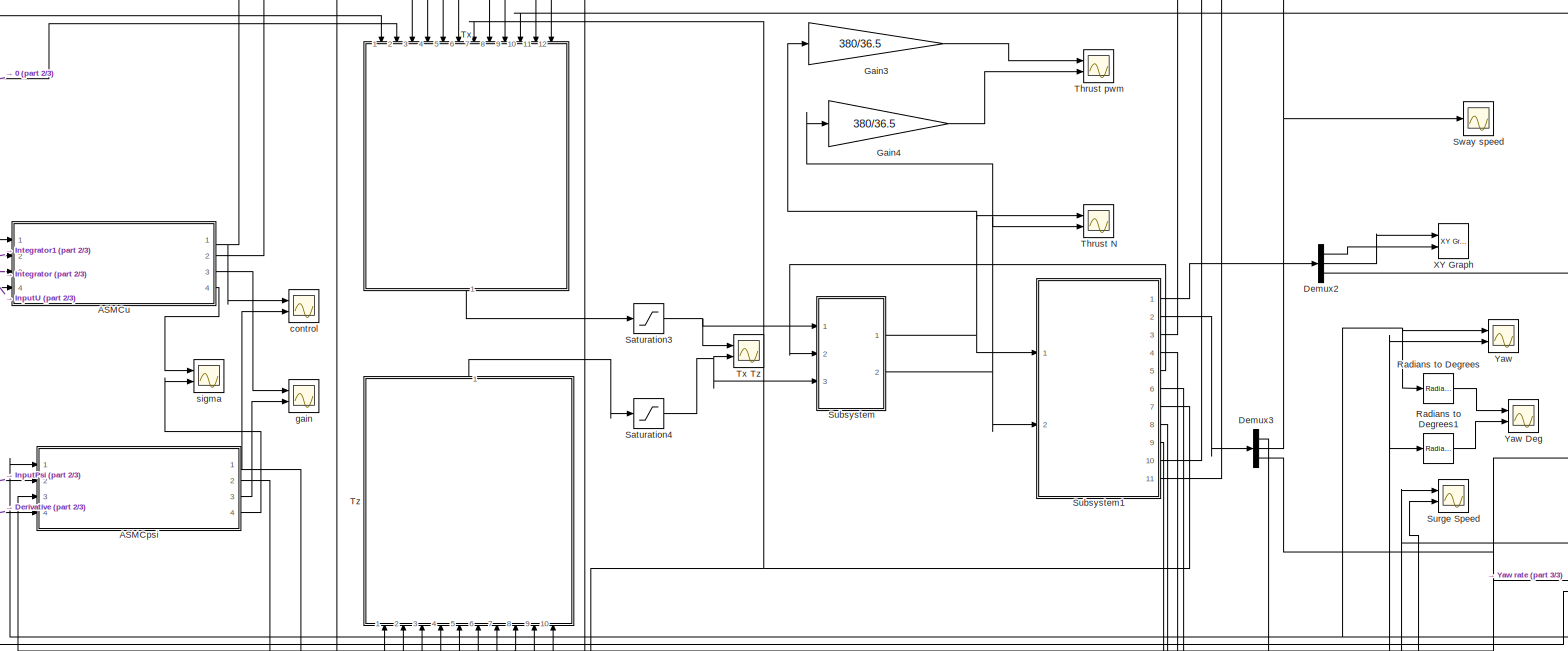
[diagram: root canvas - part 1/3, central region]
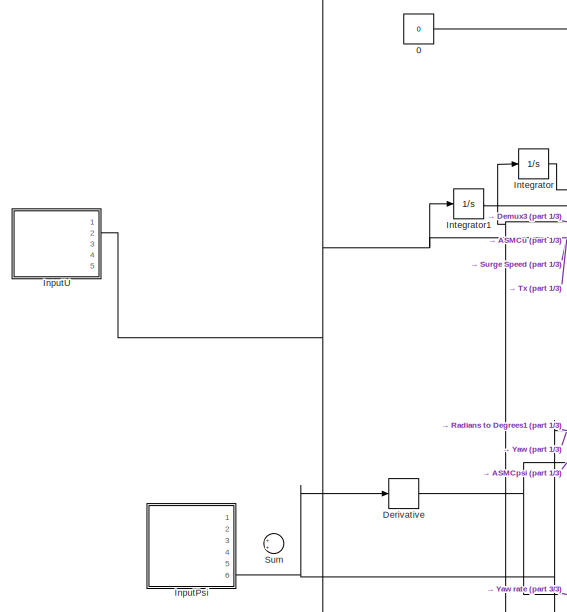
[diagram: root canvas - part 2/3, middle left region]
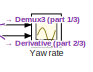
[diagram: root canvas - part 3/3, bottom right region]
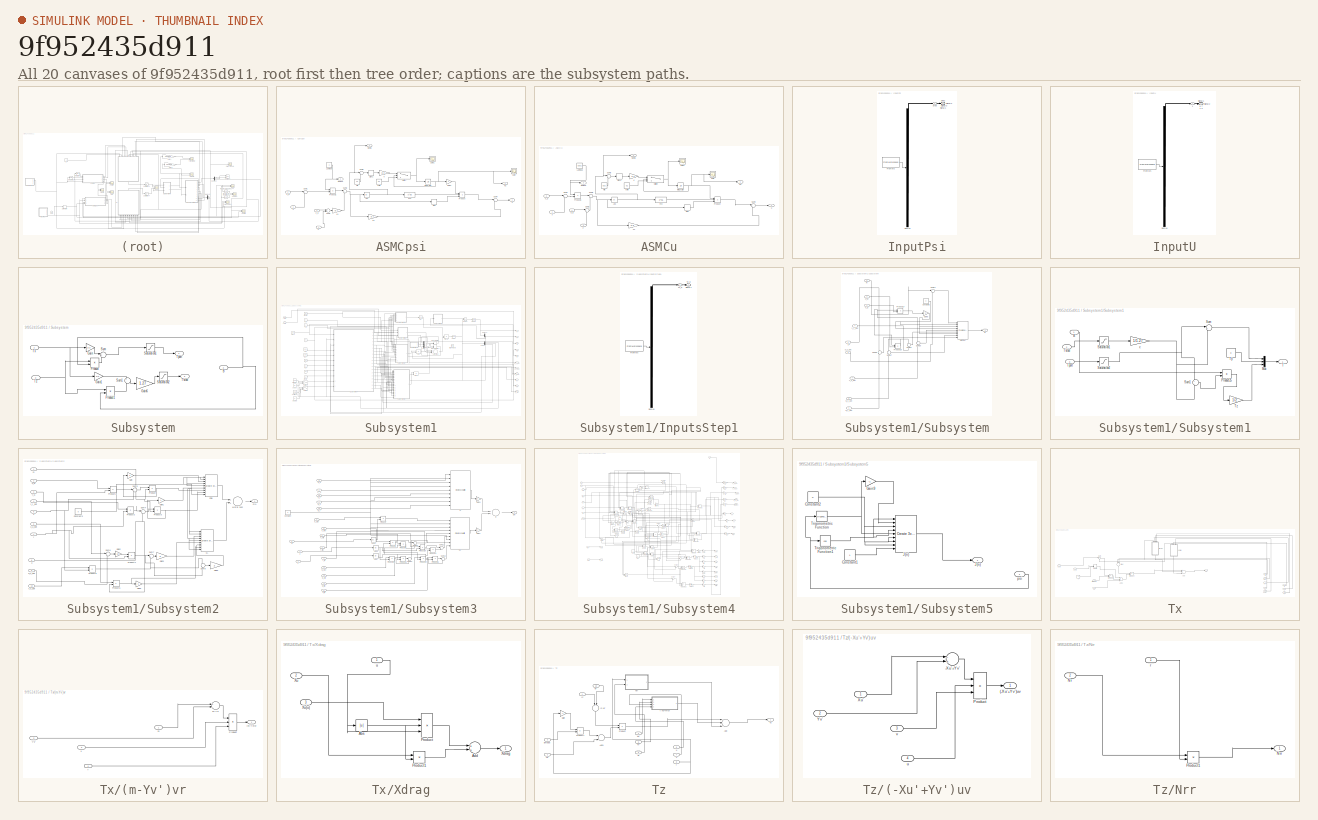
[diagram: thumbnail index - all 20 canvases of the model, root first then tree order]
MODEL slx_9f952435d911
KIND model
CONFIG AbsTol = auto
CONFIG EnableMultiTasking = off
CONFIG FixedStep = 0.01
CONFIG MaxStep = auto
CONFIG MinStep = auto
CONFIG RelTol = 1e-3
CONFIG SampleTimeConstraint = Unconstrained
CONFIG Solver = ode1
CONFIG SolverName = ode1
CONFIG StartTime = 0.0
CONFIG StopTime = 70
BLOCK [Constant] 0
  SampleTime = Inf
  Value = 0
BLOCK [SubSystem] ASMCpsi
  Ports = [4, 4]
  RequestExecContextInheritance = off
BLOCK [Abs] ASMCpsi/Abs
  SaturateOnIntegerOverflow = off
BLOCK [Fcn] ASMCpsi/Fcn
  Expr = u^0.5
BLOCK [Gain] ASMCpsi/Gain2
  Gain = -1
  OutDataTypeStr = Inherit: Inherit via internal rule
  ParamDataTypeStr = Inherit: Inherit via internal rule
  SaturateOnIntegerOverflow = off
BLOCK [Integrator] ASMCpsi/Integrator
  Ports = [1, 1]
BLOCK [Outport] ASMCpsi/Ka
  IconDisplay = Port number
  Port = 3
  VectorParamsAs1DForOutWhenUnconnected = off
BLOCK [Constant] ASMCpsi/Lambda
BLOCK [Product] ASMCpsi/Product
  InputSameDT = off
  Inputs = 3
  OutDataTypeStr = Inherit: Inherit via internal rule
  Ports = [3, 1]
  RndMeth = Floor
  SaturateOnIntegerOverflow = off
BLOCK [Product] ASMCpsi/Product1
  InputSameDT = off
  OutDataTypeStr = Inherit: Inherit via internal rule
  Ports = [2, 1]
  RndMeth = Floor
  SaturateOnIntegerOverflow = off
BLOCK [Signum] ASMCpsi/Sign
BLOCK [Signum] ASMCpsi/Sign1
BLOCK [Sum] ASMCpsi/Sum1
  IconShape = round
  InputSameDT = off
  Inputs = |+-
  OutDataTypeStr = Inherit: Inherit via internal rule
  Ports = [2, 1]
  SaturateOnIntegerOverflow = off
BLOCK [Sum] ASMCpsi/Sum2
  IconShape = round
  InputSameDT = off
  Inputs = |+-
  OutDataTypeStr = Inherit: Inherit via internal rule
  Ports = [2, 1]
  SaturateOnIntegerOverflow = off
BLOCK [Sum] ASMCpsi/Sum3
  IconShape = round
  InputSameDT = off
  Inputs = |++
  OutDataTypeStr = Inherit: Inherit via internal rule
  Ports = [2, 1]
  SaturateOnIntegerOverflow = off
BLOCK [Sum] ASMCpsi/Sum4
  IconShape = round
  InputSameDT = off
  Inputs = |+-
  OutDataTypeStr = Inherit: Inherit via internal rule
  Ports = [2, 1]
  SaturateOnIntegerOverflow = off
BLOCK [Sum] ASMCpsi/Sum5
  IconShape = round
  InputSameDT = off
  Inputs = |+-
  OutDataTypeStr = Inherit: Inherit via internal rule
  Ports = [2, 1]
  SaturateOnIntegerOverflow = off
BLOCK [Switch] ASMCpsi/Switch
  Criteria = u2 > Threshold
  InputSameDT = off
  SaturateOnIntegerOverflow = off
  Threshold = 0.2
BLOCK [Scope] ASMCpsi/gain
  Floating = off
  NumInputPorts = 1
  Ports = [1]
  ScopeSpecificationString = Simulink.scopes.TimeScopeBlockCfg('CurrentConfiguration', extmgr.ConfigurationSet(extmgr.Configuration('Core','General UI',true),extmgr.Configuration('Core','Source UI',true),extmgr.Configuration('Sources','WiredSimulink',true,'DataLoggingVariableName','ScopeData1'),extmgr.Configuration('Visuals','Time Domain',true,'SerializedDisplays',{struct('MinYLimReal','-0.16707','MaxYLimReal','1.50362','YLab...<+1443ch>
BLOCK [Scope] ASMCpsi/gain1
  Floating = off
  NumInputPorts = 1
  Ports = [1]
  ScopeSpecificationString = Simulink.scopes.TimeScopeBlockCfg('CurrentConfiguration', extmgr.ConfigurationSet(extmgr.Configuration('Core','General UI',true),extmgr.Configuration('Core','Source UI',true),extmgr.Configuration('Sources','WiredSimulink',true,'DataLoggingVariableName','ScopeData5'),extmgr.Configuration('Visuals','Time Domain',true,'SerializedDisplays',{struct('MinYLimReal','-0.875','MaxYLimReal','0.875','YLabelRe...<+1427ch>
BLOCK [Gain] ASMCpsi/k
  Gain = 0.2
  OutDataTypeStr = Inherit: Inherit via internal rule
  ParamDataTypeStr = Inherit: Inherit via internal rule
  SaturateOnIntegerOverflow = off
BLOCK [Gain] ASMCpsi/k1
  Gain = 0.1
  OutDataTypeStr = Inherit: Inherit via internal rule
  ParamDataTypeStr = Inherit: Inherit via internal rule
  SaturateOnIntegerOverflow = off
BLOCK [Gain] ASMCpsi/k2
  Gain = 0.1
  OutDataTypeStr = Inherit: Inherit via internal rule
  ParamDataTypeStr = Inherit: Inherit via internal rule
  SaturateOnIntegerOverflow = off
BLOCK [Constant] ASMCpsi/kmin
  Value = 0.2
BLOCK [Outport] ASMCpsi/lambda
  IconDisplay = Port number
  Port = 2
  VectorParamsAs1DForOutWhenUnconnected = off
BLOCK [Constant] ASMCpsi/miu
  Value = 0.1
BLOCK [Outport] ASMCpsi/sigma
  IconDisplay = Port number
  Port = 4
  VectorParamsAs1DForOutWhenUnconnected = off
BLOCK [Outport] ASMCpsi/u
  IconDisplay = Port number
  VectorParamsAs1DForOutWhenUnconnected = off
BLOCK [Inport] ASMCpsi/x
  IconDisplay = Port number
BLOCK [Inport] ASMCpsi/x'
  IconDisplay = Port number
  Port = 3
BLOCK [Inport] ASMCpsi/x'_d
  IconDisplay = Port number
  Port = 4
BLOCK [Inport] ASMCpsi/x_d
  IconDisplay = Port number
  Port = 2
BLOCK [SubSystem] ASMCu
  Ports = [4, 4]
  RequestExecContextInheritance = off
BLOCK [Abs] ASMCu/Abs
  SaturateOnIntegerOverflow = off
BLOCK [Fcn] ASMCu/Fcn
  Expr = u^0.5
BLOCK [Integrator] ASMCu/Integrator
  Ports = [1, 1]
BLOCK [Outport] ASMCu/Ka
  IconDisplay = Port number
  Port = 3
  VectorParamsAs1DForOutWhenUnconnected = off
BLOCK [Constant] ASMCu/Lambda
  Value = 0.001
BLOCK [Product] ASMCu/Product
  InputSameDT = off
  Inputs = 3
  OutDataTypeStr = Inherit: Inherit via internal rule
  Ports = [3, 1]
  RndMeth = Floor
  SaturateOnIntegerOverflow = off
BLOCK [Product] ASMCu/Product1
  InputSameDT = off
  OutDataTypeStr = Inherit: Inherit via internal rule
  Ports = [2, 1]
  RndMeth = Floor
  SaturateOnIntegerOverflow = off
BLOCK [Signum] ASMCu/Sign
BLOCK [Signum] ASMCu/Sign1
BLOCK [Sum] ASMCu/Sum1
  IconShape = round
  InputSameDT = off
  Inputs = |+-
  OutDataTypeStr = Inherit: Inherit via internal rule
  Ports = [2, 1]
  SaturateOnIntegerOverflow = off
BLOCK [Sum] ASMCu/Sum2
  IconShape = round
  InputSameDT = off
  Inputs = |+-
  OutDataTypeStr = Inherit: Inherit via internal rule
  Ports = [2, 1]
  SaturateOnIntegerOverflow = off
BLOCK [Sum] ASMCu/Sum3
  IconShape = round
  InputSameDT = off
  Inputs = |++
  OutDataTypeStr = Inherit: Inherit via internal rule
  Ports = [2, 1]
  SaturateOnIntegerOverflow = off
BLOCK [Sum] ASMCu/Sum4
  IconShape = round
  InputSameDT = off
  Inputs = |--
  OutDataTypeStr = Inherit: Inherit via internal rule
  Ports = [2, 1]
  SaturateOnIntegerOverflow = off
BLOCK [Sum] ASMCu/Sum5
  IconShape = round
  InputSameDT = off
  Inputs = |+-
  OutDataTypeStr = Inherit: Inherit via internal rule
  Ports = [2, 1]
  SaturateOnIntegerOverflow = off
BLOCK [Switch] ASMCu/Switch
  Criteria = u2 > Threshold
  InputSameDT = off
  SaturateOnIntegerOverflow = off
  Threshold = 0.2
BLOCK [Scope] ASMCu/gain
  Floating = off
  NumInputPorts = 1
  Ports = [1]
  ScopeSpecificationString = Simulink.scopes.TimeScopeBlockCfg('CurrentConfiguration', extmgr.ConfigurationSet(extmgr.Configuration('Core','General UI',true),extmgr.Configuration('Core','Source UI',true),extmgr.Configuration('Sources','WiredSimulink',true,'DataLoggingVariableName','ScopeData1'),extmgr.Configuration('Visuals','Time Domain',true,'SerializedDisplays',{struct('MinYLimReal','-0.00125','MaxYLimReal','0.01126','YLab...<+1443ch>
BLOCK [Scope] ASMCu/gain1
  Floating = off
  NumInputPorts = 1
  Ports = [1]
  ScopeSpecificationString = Simulink.scopes.TimeScopeBlockCfg('CurrentConfiguration', extmgr.ConfigurationSet(extmgr.Configuration('Core','General UI',true),extmgr.Configuration('Core','Source UI',true),extmgr.Configuration('Sources','WiredSimulink',true,'DataLoggingVariableName','ScopeData6'),extmgr.Configuration('Visuals','Time Domain',true,'SerializedDisplays',{struct('MinYLimReal','-0.875','MaxYLimReal','0.875','YLabelRe...<+1427ch>
BLOCK [Gain] ASMCu/k
  Gain = 0.2
  OutDataTypeStr = Inherit: Inherit via internal rule
  ParamDataTypeStr = Inherit: Inherit via internal rule
  SaturateOnIntegerOverflow = off
BLOCK [Gain] ASMCu/k2
  Gain = 0.5
  OutDataTypeStr = Inherit: Inherit via internal rule
  ParamDataTypeStr = Inherit: Inherit via internal rule
  SaturateOnIntegerOverflow = off
BLOCK [Constant] ASMCu/kmin
  Value = 0.2
BLOCK [Outport] ASMCu/lambda
  IconDisplay = Port number
  Port = 2
  VectorParamsAs1DForOutWhenUnconnected = off
BLOCK [Constant] ASMCu/miu
  Value = 0.02
BLOCK [Outport] ASMCu/sigma
  IconDisplay = Port number
  Port = 4
  VectorParamsAs1DForOutWhenUnconnected = off
BLOCK [Outport] ASMCu/u
  IconDisplay = Port number
  VectorParamsAs1DForOutWhenUnconnected = off
BLOCK [Inport] ASMCu/x
  IconDisplay = Port number
BLOCK [Inport] ASMCu/x'
  IconDisplay = Port number
  Port = 3
BLOCK [Inport] ASMCu/x'_d
  IconDisplay = Port number
  Port = 4
BLOCK [Inport] ASMCu/x_d
  IconDisplay = Port number
  Port = 2
BLOCK [Demux] Demux2
  DisplayOption = bar
  Outputs = 3
  Ports = [1, 3]
BLOCK [Demux] Demux3
  DisplayOption = bar
  Outputs = 3
  Ports = [1, 3]
BLOCK [Derivative] Derivative
BLOCK [Gain] Gain3
  Gain = 380/36.5
  OutDataTypeStr = Inherit: Inherit via internal rule
  ParamDataTypeStr = Inherit: Inherit via internal rule
  SaturateOnIntegerOverflow = off
BLOCK [Gain] Gain4
  Gain = 380/36.5
  OutDataTypeStr = Inherit: Inherit via internal rule
  ParamDataTypeStr = Inherit: Inherit via internal rule
  SaturateOnIntegerOverflow = off
BLOCK [SubSystem] InputPsi
  ClipboardFcn = sigbuilder_block('clipboard');
  CloseFcn = sigbuilder_block('close');
  ContinueFcn = sigbuilder_block('continue');
  CopyFcn = sigbuilder_block('copy');
  DeleteFcn = sigbuilder_block('delete');
  LoadFcn = sigbuilder_block('load');
  MaskHideContents = on
  ModelCloseFcn = sigbuilder_block('modelClose');
  NameChangeFcn = sigbuilder_block('namechange');
  OpenFcn = sigbuilder_block('open',[327.411 0 679.074 714.695 ]);
  PauseFcn = sigbuilder_block('pause');
  Ports = [0, 6]
  PreSaveFcn = sigbuilder_block('preSave');
  RequestExecContextInheritance = off
  StartFcn = sigbuilder_block('start');
  StopFcn = sigbuilder_block('stop');
  Tag = STV Subsys
BLOCK [Demux] InputPsi/Demux
  Outputs = 6
  Ports = [1, 6]
  Tag = STV Demux
BLOCK [FromWorkspace] InputPsi/FromWs
  SampleTime = 0
  Tag = STV FromWs
  VariableName = tuvar
  ZeroCross = on
BLOCK [Outport] InputPsi/Signal 1
  IconDisplay = Port number
  Port = 4
  Tag = STV Outport
  VectorParamsAs1DForOutWhenUnconnected = off
BLOCK [Outport] InputPsi/Signal 2
  IconDisplay = Port number
  Port = 5
  Tag = STV Outport
  VectorParamsAs1DForOutWhenUnconnected = off
BLOCK [Outport] InputPsi/Signal 3
  IconDisplay = Port number
  Port = 6
  Tag = STV Outport
BLOCK [Outport] InputPsi/Step
  IconDisplay = Port number
  Tag = STV Outport
  VectorParamsAs1DForOutWhenUnconnected = off
BLOCK [Outport] InputPsi/sine1
  IconDisplay = Port number
  Port = 2
  Tag = STV Outport
  VectorParamsAs1DForOutWhenUnconnected = off
BLOCK [Outport] InputPsi/sine2
  IconDisplay = Port number
  Port = 3
  Tag = STV Outport
  VectorParamsAs1DForOutWhenUnconnected = off
BLOCK [SubSystem] InputU
  ClipboardFcn = sigbuilder_block('clipboard');
  CloseFcn = sigbuilder_block('close');
  ContinueFcn = sigbuilder_block('continue');
  CopyFcn = sigbuilder_block('copy');
  DeleteFcn = sigbuilder_block('delete');
  LoadFcn = sigbuilder_block('load');
  MaskHideContents = on
  ModelCloseFcn = sigbuilder_block('modelClose');
  NameChangeFcn = sigbuilder_block('namechange');
  OpenFcn = sigbuilder_block('open',[122.021 0 701.053 737.432 ]);
  PauseFcn = sigbuilder_block('pause');
  Ports = [0, 5]
  PreSaveFcn = sigbuilder_block('preSave');
  RequestExecContextInheritance = off
  StartFcn = sigbuilder_block('start');
  StopFcn = sigbuilder_block('stop');
  Tag = STV Subsys
BLOCK [Outport] InputU/0.7
  IconDisplay = Port number
  Port = 2
  Tag = STV Outport
  VectorParamsAs1DForOutWhenUnconnected = off
BLOCK [Outport] InputU/1
  IconDisplay = Port number
  Tag = STV Outport
  VectorParamsAs1DForOutWhenUnconnected = off
BLOCK [Outport] InputU/1.3
  IconDisplay = Port number
  Port = 4
  Tag = STV Outport
  VectorParamsAs1DForOutWhenUnconnected = off
BLOCK [Demux] InputU/Demux
  Outputs = 5
  Ports = [1, 5]
  Tag = STV Demux
BLOCK [FromWorkspace] InputU/FromWs
  SampleTime = 0
  Tag = STV FromWs
  VariableName = tuvar
  ZeroCross = on
BLOCK [Outport] InputU/Signal 1
  IconDisplay = Port number
  Port = 3
  Tag = STV Outport
  VectorParamsAs1DForOutWhenUnconnected = off
BLOCK [Outport] InputU/Signal 2
  IconDisplay = Port number
  Port = 5
  Tag = STV Outport
  VectorParamsAs1DForOutWhenUnconnected = off
BLOCK [Integrator] Integrator
  Ports = [1, 1]
BLOCK [Integrator] Integrator1
  Ports = [1, 1]
BLOCK [Reference] Radians to Degrees  REF=simulink_extras/Transformations/Radians
to Degrees
  Ports = [1, 1]
  SourceBlock = simulink_extras/Transformations/Radians\nto Degrees
  SourceProductBaseCode = SL
  SourceProductName = Simulink
  SourceType = RadiansToDegrees
BLOCK [Reference] Radians to Degrees1  REF=simulink_extras/Transformations/Radians
to Degrees
  Ports = [1, 1]
  SourceBlock = simulink_extras/Transformations/Radians\nto Degrees
  SourceProductBaseCode = SL
  SourceProductName = Simulink
  SourceType = RadiansToDegrees
BLOCK [Saturate] Saturation3
  InputPortMap = u0
  LowerLimit = -64.97
  Ports = [1, 1]
  UpperLimit = 64.97
BLOCK [Saturate] Saturation4
  InputPortMap = u0
  LowerLimit = -13.31
  Ports = [1, 1]
  UpperLimit = 13.31
BLOCK [SubSystem] Subsystem
  Ports = [3, 2]
  RequestExecContextInheritance = off
BLOCK [Inport] Subsystem/B
  IconDisplay = Port number
  Port = 2
BLOCK [Gain] Subsystem/Gain
  Gain = 1/2
  OutDataTypeStr = Inherit: Inherit via internal rule
  ParamDataTypeStr = Inherit: Inherit via internal rule
  SaturateOnIntegerOverflow = off
BLOCK [Gain] Subsystem/Gain1
  Gain = 1/2
  OutDataTypeStr = Inherit: Inherit via internal rule
  ParamDataTypeStr = Inherit: Inherit via internal rule
  SaturateOnIntegerOverflow = off
BLOCK [Gain] Subsystem/Gain6
  Gain = 1.27
  OutDataTypeStr = Inherit: Inherit via internal rule
  ParamDataTypeStr = Inherit: Inherit via internal rule
  SaturateOnIntegerOverflow = off
BLOCK [Product] Subsystem/Product
  InputSameDT = off
  Inputs = */
  OutDataTypeStr = Inherit: Inherit via internal rule
  Ports = [2, 1]
  RndMeth = Floor
  SaturateOnIntegerOverflow = off
BLOCK [Product] Subsystem/Product1
  InputSameDT = off
  Inputs = */
  OutDataTypeStr = Inherit: Inherit via internal rule
  Ports = [2, 1]
  RndMeth = Floor
  SaturateOnIntegerOverflow = off
BLOCK [Saturate] Subsystem/Saturation1
  InputPortMap = u0
  LowerLimit = -30
  Ports = [1, 1]
  UpperLimit = 36.5
BLOCK [Saturate] Subsystem/Saturation2
  InputPortMap = u0
  LowerLimit = -30
  Ports = [1, 1]
  UpperLimit = 36.5
BLOCK [Sum] Subsystem/Sum
  IconShape = round
  InputSameDT = off
  OutDataTypeStr = Inherit: Inherit via internal rule
  Ports = [2, 1]
  SaturateOnIntegerOverflow = off
BLOCK [Sum] Subsystem/Sum1
  IconShape = round
  InputSameDT = off
  Inputs = +-
  OutDataTypeStr = Inherit: Inherit via internal rule
  Ports = [2, 1]
  SaturateOnIntegerOverflow = off
BLOCK [Outport] Subsystem/Tport
  IconDisplay = Port number
  VectorParamsAs1DForOutWhenUnconnected = off
BLOCK [Outport] Subsystem/Tstbd
  IconDisplay = Port number
  Port = 2
  VectorParamsAs1DForOutWhenUnconnected = off
BLOCK [Inport] Subsystem/Tx
  IconDisplay = Port number
BLOCK [Inport] Subsystem/Tz
  IconDisplay = Port number
  Port = 3
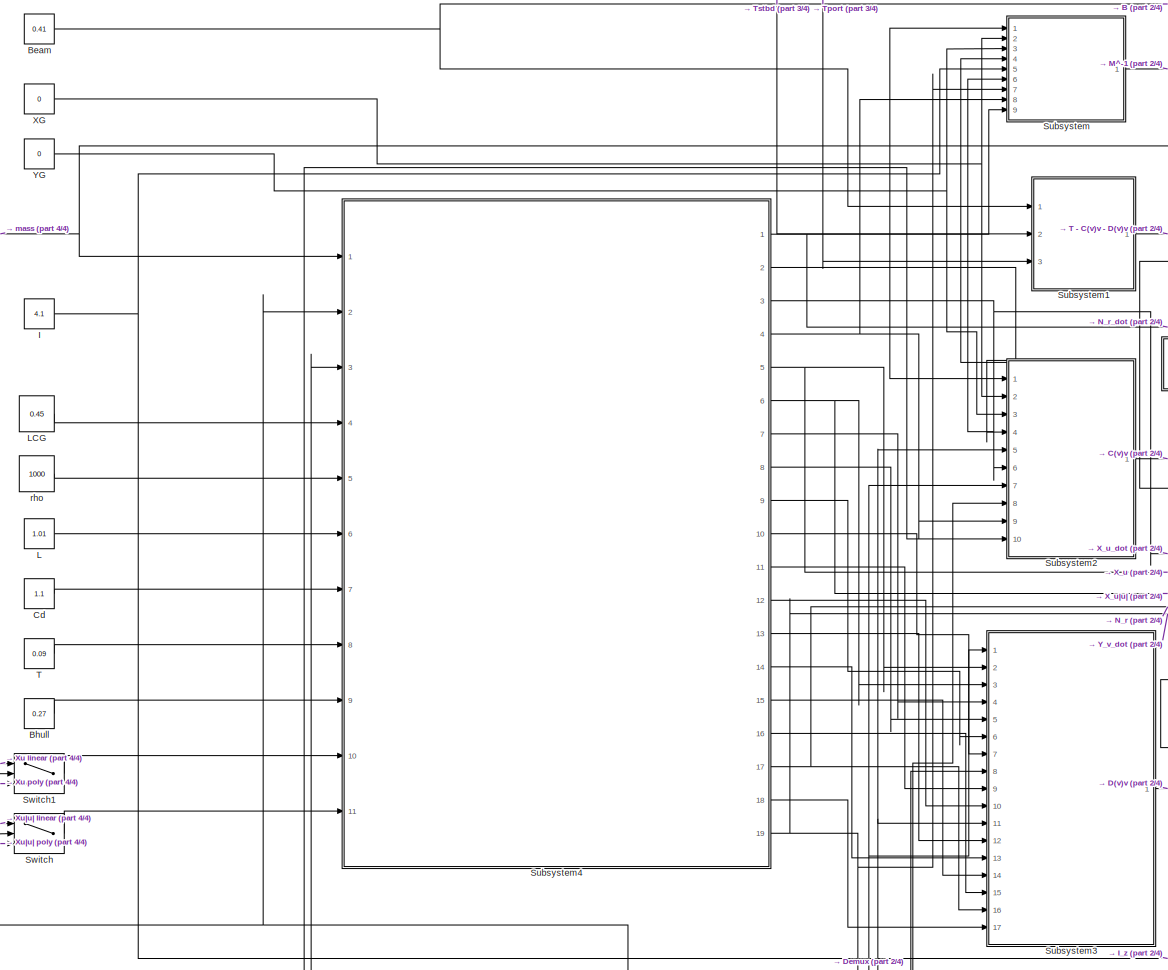
[diagram: Subsystem1 - part 1/4, left side, full height]
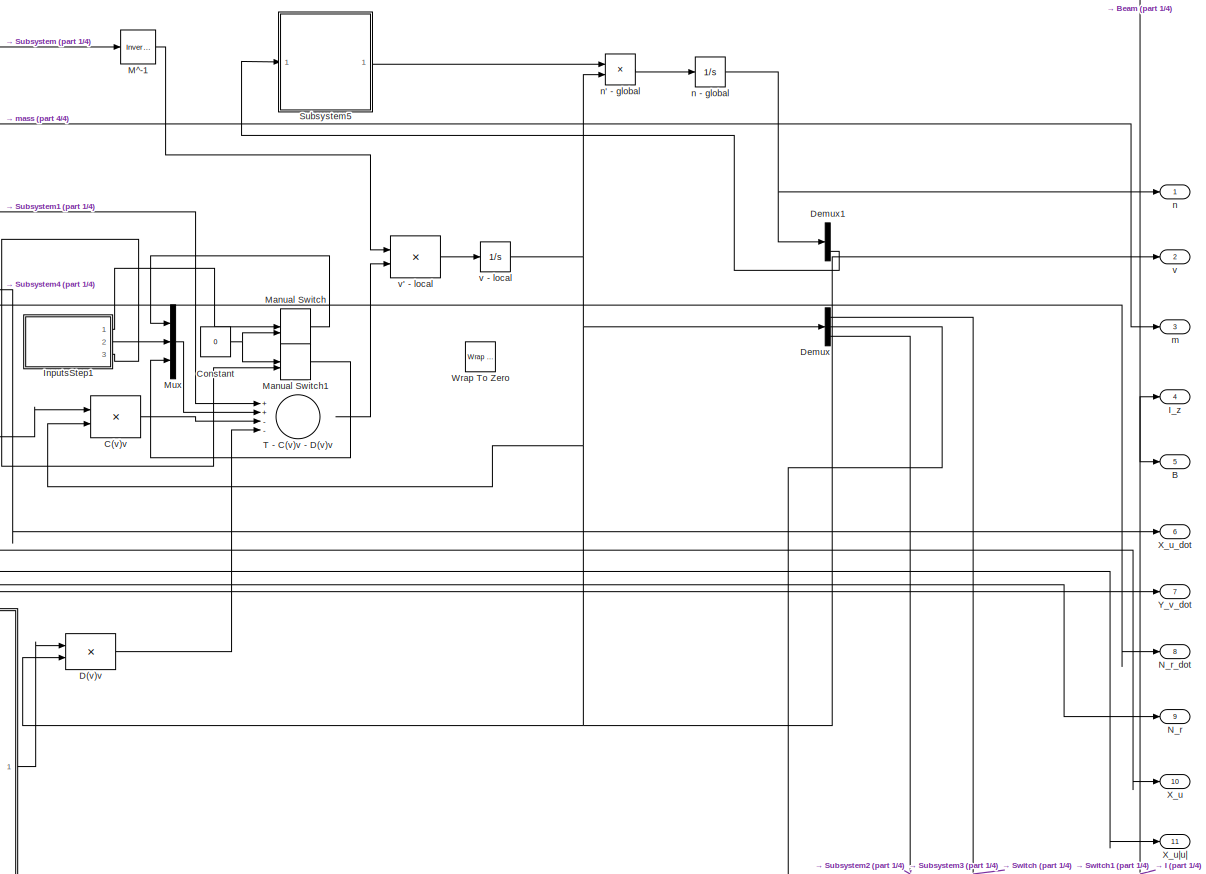
[diagram: Subsystem1 - part 2/4, right side, full height]
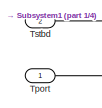
[diagram: Subsystem1 - part 3/4, top left region]
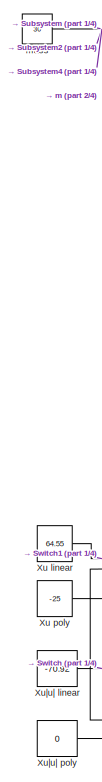
[diagram: Subsystem1 - part 4/4, middle left region]
BLOCK [SubSystem] Subsystem1
  Ports = [2, 11]
  RequestExecContextInheritance = off
BLOCK [Outport] Subsystem1/B
  IconDisplay = Port number
  Port = 5
  VectorParamsAs1DForOutWhenUnconnected = off
BLOCK [Constant] Subsystem1/Beam
  Value = 0.41
BLOCK [Constant] Subsystem1/Bhull 
  Value = 0.27
BLOCK [Product] Subsystem1/C(v)v
  InputSameDT = off
  Multiplication = Matrix(*)
  OutDataTypeStr = Inherit: Inherit via internal rule
  Ports = [2, 1]
  RndMeth = Floor
  SaturateOnIntegerOverflow = off
BLOCK [Constant] Subsystem1/Cd
  Value = 1.1
BLOCK [Constant] Subsystem1/Constant
  Value = 0
BLOCK [Product] Subsystem1/D(v)v
  InputSameDT = off
  Multiplication = Matrix(*)
  OutDataTypeStr = Inherit: Inherit via internal rule
  Ports = [2, 1]
  RndMeth = Floor
  SaturateOnIntegerOverflow = off
BLOCK [Demux] Subsystem1/Demux
  DisplayOption = bar
  Outputs = 3
  Ports = [1, 3]
BLOCK [Demux] Subsystem1/Demux1
  DisplayOption = bar
  Outputs = 3
  Ports = [1, 3]
BLOCK [Constant] Subsystem1/I 
  Value = 4.1
BLOCK [Outport] Subsystem1/I_z
  IconDisplay = Port number
  Port = 4
  VectorParamsAs1DForOutWhenUnconnected = off
BLOCK [SubSystem] Subsystem1/InputsStep1
  ClipboardFcn = sigbuilder_block('clipboard');
  CloseFcn = sigbuilder_block('close');
  ContinueFcn = sigbuilder_block('continue');
  CopyFcn = sigbuilder_block('copy');
  DeleteFcn = sigbuilder_block('delete');
  LoadFcn = sigbuilder_block('load');
  MaskHideContents = on
  ModelCloseFcn = sigbuilder_block('modelClose');
  NameChangeFcn = sigbuilder_block('namechange');
  OpenFcn = sigbuilder_block('open',[233.25 0 805.5 688.168 ]);
  PauseFcn = sigbuilder_block('pause');
  Ports = [0, 3]
  PreSaveFcn = sigbuilder_block('preSave');
  RequestExecContextInheritance = off
  StartFcn = sigbuilder_block('start');
  StopFcn = sigbuilder_block('stop');
  Tag = STV Subsys
BLOCK [Demux] Subsystem1/InputsStep1/Demux
  Outputs = 3
  Ports = [1, 3]
  Tag = STV Demux
BLOCK [FromWorkspace] Subsystem1/InputsStep1/FromWs
  SampleTime = 0
  Tag = STV FromWs
  VariableName = tuvar
  ZeroCross = on
BLOCK [Outport] Subsystem1/InputsStep1/Signal 1
  IconDisplay = Port number
  Port = 2
  Tag = STV Outport
  VectorParamsAs1DForOutWhenUnconnected = off
BLOCK [Outport] Subsystem1/InputsStep1/Tx_p
  IconDisplay = Port number
  Tag = STV Outport
  VectorParamsAs1DForOutWhenUnconnected = off
BLOCK [Outport] Subsystem1/InputsStep1/Tz_p
  IconDisplay = Port number
  Port = 3
  Tag = STV Outport
  VectorParamsAs1DForOutWhenUnconnected = off
BLOCK [Constant] Subsystem1/L
  Value = 1.01
BLOCK [Constant] Subsystem1/LCG
  Value = 0.45
BLOCK [Reference] Subsystem1/M^-1  REF=aerolibutil/Invert 
3x3 Matrix
  Ports = [1, 1]
  SourceBlock = aerolibutil/Invert \n3x3 Matrix
  SourceProductBaseCode = AE
  SourceProductName = Aerospace Blockset
  SourceType = Invert 3x3 Matrix
BLOCK [ManualSwitch] Subsystem1/Manual Switch
  CurrentSetting = 0
BLOCK [ManualSwitch] Subsystem1/Manual Switch1
BLOCK [Mux] Subsystem1/Mux
  DisplayOption = bar
  Inputs = 3
  Ports = [3, 1]
BLOCK [Outport] Subsystem1/N_r
  IconDisplay = Port number
  Port = 9
  VectorParamsAs1DForOutWhenUnconnected = off
BLOCK [Outport] Subsystem1/N_r_dot
  IconDisplay = Port number
  Port = 8
  VectorParamsAs1DForOutWhenUnconnected = off
BLOCK [SubSystem] Subsystem1/Subsystem
  Ports = [9, 1]
  RequestExecContextInheritance = off
BLOCK [Constant] Subsystem1/Subsystem/Constant3
  Value = 0
BLOCK [Gain] Subsystem1/Subsystem/Gain8
  Gain = -1
  OutDataTypeStr = Inherit: Inherit via internal rule
  ParamDataTypeStr = Inherit: Inherit via internal rule
  SaturateOnIntegerOverflow = off
BLOCK [Inport] Subsystem1/Subsystem/I_z
  IconDisplay = Port number
  Port = 5
BLOCK [Outport] Subsystem1/Subsystem/M
  IconDisplay = Port number
  VectorParamsAs1DForOutWhenUnconnected = off
BLOCK [Reference] Subsystem1/Subsystem/Matrix M  REF=sharedutil/Create 3x3 Matrix
  Ports = [9, 1]
  SourceBlock = sharedutil/Create 3x3 Matrix
  SourceProductBaseCode = AE
  SourceProductName = Aerospace Blockset
  SourceType = Create 3x3 Matrix
BLOCK [Inport] Subsystem1/Subsystem/N_r_dot
  IconDisplay = Port number
  Port = 9
BLOCK [Inport] Subsystem1/Subsystem/N_v_dot
  IconDisplay = Port number
  Port = 8
BLOCK [Product] Subsystem1/Subsystem/Product17
  InputSameDT = off
  OutDataTypeStr = Inherit: Inherit via internal rule
  Ports = [2, 1]
  RndMeth = Floor
  SaturateOnIntegerOverflow = off
BLOCK [Product] Subsystem1/Subsystem/Product18
  InputSameDT = off
  OutDataTypeStr = Inherit: Inherit via internal rule
  Ports = [2, 1]
  RndMeth = Floor
  SaturateOnIntegerOverflow = off
BLOCK [Sum] Subsystem1/Subsystem/Sum14
  IconShape = round
  InputSameDT = off
  Inputs = +-
  OutDataTypeStr = Inherit: Inherit via internal rule
  Ports = [2, 1]
  SaturateOnIntegerOverflow = off
BLOCK [Sum] Subsystem1/Subsystem/Sum15
  IconShape = round
  InputSameDT = off
  Inputs = +-
  OutDataTypeStr = Inherit: Inherit via internal rule
  Ports = [2, 1]
  SaturateOnIntegerOverflow = off
BLOCK [Sum] Subsystem1/Subsystem/Sum16
  IconShape = round
  InputSameDT = off
  Inputs = +-
  OutDataTypeStr = Inherit: Inherit via internal rule
  Ports = [2, 1]
  SaturateOnIntegerOverflow = off
BLOCK [Sum] Subsystem1/Subsystem/Sum17
  IconShape = round
  InputSameDT = off
  Inputs = +-
  OutDataTypeStr = Inherit: Inherit via internal rule
  Ports = [2, 1]
  SaturateOnIntegerOverflow = off
BLOCK [Sum] Subsystem1/Subsystem/Sum18
  IconShape = round
  InputSameDT = off
  Inputs = +-
  OutDataTypeStr = Inherit: Inherit via internal rule
  Ports = [2, 1]
  SaturateOnIntegerOverflow = off
BLOCK [Inport] Subsystem1/Subsystem/X_G
  IconDisplay = Port number
  Port = 2
BLOCK [Inport] Subsystem1/Subsystem/X_u_dot
  IconDisplay = Port number
  Port = 6
BLOCK [Inport] Subsystem1/Subsystem/Y_G
  IconDisplay = Port number
  Port = 3
BLOCK [Inport] Subsystem1/Subsystem/Y_r_dot
  IconDisplay = Port number
  Port = 4
BLOCK [Inport] Subsystem1/Subsystem/Y_v_dot
  IconDisplay = Port number
  Port = 7
BLOCK [Inport] Subsystem1/Subsystem/m
  IconDisplay = Port number
BLOCK [SubSystem] Subsystem1/Subsystem1
  Ports = [3, 1]
  RequestExecContextInheritance = off
BLOCK [Inport] Subsystem1/Subsystem1/B
  IconDisplay = Port number
BLOCK [Mux] Subsystem1/Subsystem1/Mux
  DisplayOption = bar
  Inputs = 3
  Ports = [3, 1]
BLOCK [Product] Subsystem1/Subsystem1/Product25
  InputSameDT = off
  OutDataTypeStr = Inherit: Inherit via internal rule
  Ports = [2, 1]
  RndMeth = Floor
  SaturateOnIntegerOverflow = off
BLOCK [Saturate] Subsystem1/Subsystem1/Saturation1
  InputPortMap = u0
  LowerLimit = -30
  Ports = [1, 1]
  UpperLimit = 36.5
BLOCK [Saturate] Subsystem1/Subsystem1/Saturation2
  InputPortMap = u0
  LowerLimit = -30
  Ports = [1, 1]
  UpperLimit = 36.5
BLOCK [Sum] Subsystem1/Subsystem1/Sum
  IconShape = round
  InputSameDT = off
  Inputs = |++
  OutDataTypeStr = Inherit: Inherit via internal rule
  Ports = [2, 1]
  SaturateOnIntegerOverflow = off
BLOCK [Sum] Subsystem1/Subsystem1/Sum1
  IconShape = round
  InputSameDT = off
  Inputs = +-
  OutDataTypeStr = Inherit: Inherit via internal rule
  Ports = [2, 1]
  SaturateOnIntegerOverflow = off
BLOCK [Outport] Subsystem1/Subsystem1/T
  IconDisplay = Port number
  VectorParamsAs1DForOutWhenUnconnected = off
BLOCK [Inport] Subsystem1/Subsystem1/Tport
  IconDisplay = Port number
  Port = 3
BLOCK [Inport] Subsystem1/Subsystem1/Tstbd
  IconDisplay = Port number
  Port = 2
BLOCK [Constant] Subsystem1/Subsystem1/Ty
  Value = 0
BLOCK [Gain] Subsystem1/Subsystem1/Tz
  Gain = 1/2
  OutDataTypeStr = Inherit: Inherit via internal rule
  ParamDataTypeStr = Inherit: Inherit via internal rule
  SaturateOnIntegerOverflow = off
BLOCK [Gain] Subsystem1/Subsystem1/c
  Gain = 1/1.27
  OutDataTypeStr = Inherit: Inherit via internal rule
  ParamDataTypeStr = Inherit: Inherit via internal rule
  SaturateOnIntegerOverflow = off
BLOCK [SubSystem] Subsystem1/Subsystem2
  Ports = [10, 1]
  RequestExecContextInheritance = off
BLOCK [Reference] Subsystem1/Subsystem2/ CRB  REF=sharedutil/Create 3x3 Matrix
  Ports = [9, 1]
  SourceBlock = sharedutil/Create 3x3 Matrix
  SourceProductBaseCode = AE
  SourceProductName = Aerospace Blockset
  SourceType = Create 3x3 Matrix
BLOCK [Outport] Subsystem1/Subsystem2/C(v)
  IconDisplay = Port number
  VectorParamsAs1DForOutWhenUnconnected = off
BLOCK [Reference] Subsystem1/Subsystem2/CA  REF=sharedutil/Create 3x3 Matrix
  Ports = [9, 1]
  SourceBlock = sharedutil/Create 3x3 Matrix
  SourceProductBaseCode = AE
  SourceProductName = Aerospace Blockset
  SourceType = Create 3x3 Matrix
BLOCK [Constant] Subsystem1/Subsystem2/Constant3
  Value = 0
BLOCK [Gain] Subsystem1/Subsystem2/Gain
  Gain = -1
  OutDataTypeStr = Inherit: Inherit via internal rule
  ParamDataTypeStr = Inherit: Inherit via internal rule
  SaturateOnIntegerOverflow = off
BLOCK [Gain] Subsystem1/Subsystem2/Gain1
  Gain = -1
  OutDataTypeStr = Inherit: Inherit via internal rule
  ParamDataTypeStr = Inherit: Inherit via internal rule
  SaturateOnIntegerOverflow = off
BLOCK [Gain] Subsystem1/Subsystem2/Gain2
  Gain = 1/2
  OutDataTypeStr = Inherit: Inherit via internal rule
  ParamDataTypeStr = Inherit: Inherit via internal rule
  SaturateOnIntegerOverflow = off
BLOCK [Gain] Subsystem1/Subsystem2/Gain3
  Gain = 2
  OutDataTypeStr = Inherit: Inherit via internal rule
  ParamDataTypeStr = Inherit: Inherit via internal rule
  SaturateOnIntegerOverflow = off
BLOCK [Gain] Subsystem1/Subsystem2/Gain5
  Gain = 2
  OutDataTypeStr = Inherit: Inherit via internal rule
  ParamDataTypeStr = Inherit: Inherit via internal rule
  SaturateOnIntegerOverflow = off
BLOCK [Gain] Subsystem1/Subsystem2/Gain6
  Gain = -1
  OutDataTypeStr = Inherit: Inherit via internal rule
  ParamDataTypeStr = Inherit: Inherit via internal rule
  SaturateOnIntegerOverflow = off
BLOCK [Sum] Subsystem1/Subsystem2/Matrix Sum
  InputSameDT = off
  OutDataTypeStr = Inherit: Inherit via internal rule
  Ports = [2, 1]
  SaturateOnIntegerOverflow = off
BLOCK [Inport] Subsystem1/Subsystem2/N_v_dot
  IconDisplay = Port number
  Port = 9
BLOCK [Product] Subsystem1/Subsystem2/Product
  InputSameDT = off
  OutDataTypeStr = Inherit: Inherit via internal rule
  Ports = [2, 1]
  RndMeth = Floor
  SaturateOnIntegerOverflow = off
BLOCK [Product] Subsystem1/Subsystem2/Product1
  InputSameDT = off
  OutDataTypeStr = Inherit: Inherit via internal rule
  Ports = [2, 1]
  RndMeth = Floor
  SaturateOnIntegerOverflow = off
BLOCK [Product] Subsystem1/Subsystem2/Product2
  InputSameDT = off
  OutDataTypeStr = Inherit: Inherit via internal rule
  Ports = [2, 1]
  RndMeth = Floor
  SaturateOnIntegerOverflow = off
BLOCK [Product] Subsystem1/Subsystem2/Product3
  InputSameDT = off
  OutDataTypeStr = Inherit: Inherit via internal rule
  Ports = [2, 1]
  RndMeth = Floor
  SaturateOnIntegerOverflow = off
BLOCK [Product] Subsystem1/Subsystem2/Product4
  InputSameDT = off
  OutDataTypeStr = Inherit: Inherit via internal rule
  Ports = [2, 1]
  RndMeth = Floor
  SaturateOnIntegerOverflow = off
BLOCK [Product] Subsystem1/Subsystem2/Product5
  InputSameDT = off
  OutDataTypeStr = Inherit: Inherit via internal rule
  Ports = [2, 1]
  RndMeth = Floor
  SaturateOnIntegerOverflow = off
BLOCK [Product] Subsystem1/Subsystem2/Product6
  InputSameDT = off
  OutDataTypeStr = Inherit: Inherit via internal rule
  Ports = [2, 1]
  RndMeth = Floor
  SaturateOnIntegerOverflow = off
BLOCK [Sum] Subsystem1/Subsystem2/Sum3
  IconShape = round
  InputSameDT = off
  Inputs = |++
  OutDataTypeStr = Inherit: Inherit via internal rule
  Ports = [2, 1]
  SaturateOnIntegerOverflow = off
BLOCK [Sum] Subsystem1/Subsystem2/Sum4
  IconShape = round
  InputSameDT = off
  Inputs = +-
  OutDataTypeStr = Inherit: Inherit via internal rule
  Ports = [2, 1]
  SaturateOnIntegerOverflow = off
BLOCK [Sum] Subsystem1/Subsystem2/Sum6
  IconShape = round
  InputSameDT = off
  Inputs = |++
  OutDataTypeStr = Inherit: Inherit via internal rule
  Ports = [2, 1]
  SaturateOnIntegerOverflow = off
BLOCK [Sum] Subsystem1/Subsystem2/Sum7
  IconShape = round
  InputSameDT = off
  Inputs = |++
  OutDataTypeStr = Inherit: Inherit via internal rule
  Ports = [2, 1]
  SaturateOnIntegerOverflow = off
BLOCK [Sum] Subsystem1/Subsystem2/Sum8
  IconShape = round
  InputSameDT = off
  Inputs = --
  OutDataTypeStr = Inherit: Inherit via internal rule
  Ports = [2, 1]
  SaturateOnIntegerOverflow = off
BLOCK [Inport] Subsystem1/Subsystem2/X_G
  IconDisplay = Port number
  Port = 2
BLOCK [Inport] Subsystem1/Subsystem2/X_u_dot
  IconDisplay = Port number
  Port = 6
BLOCK [Inport] Subsystem1/Subsystem2/Y_G
  IconDisplay = Port number
  Port = 3
BLOCK [Inport] Subsystem1/Subsystem2/Y_r_dot
  IconDisplay = Port number
  Port = 4
BLOCK [Inport] Subsystem1/Subsystem2/Y_v_dot
  IconDisplay = Port number
  Port = 10
BLOCK [Inport] Subsystem1/Subsystem2/m
  IconDisplay = Port number
BLOCK [Inport] Subsystem1/Subsystem2/r
  IconDisplay = Port number
  Port = 7
BLOCK [Inport] Subsystem1/Subsystem2/u
  IconDisplay = Port number
  Port = 8
BLOCK [Inport] Subsystem1/Subsystem2/v
  IconDisplay = Port number
  Port = 5
BLOCK [SubSystem] Subsystem1/Subsystem3
  Ports = [17, 1]
  RequestExecContextInheritance = off
BLOCK [Abs] Subsystem1/Subsystem3/Abs r
  SaturateOnIntegerOverflow = off
BLOCK [Abs] Subsystem1/Subsystem3/Abs u
  SaturateOnIntegerOverflow = off
BLOCK [Abs] Subsystem1/Subsystem3/Abs v
  SaturateOnIntegerOverflow = off
BLOCK [Constant] Subsystem1/Subsystem3/Constant
  Value = 0
BLOCK [Sum] Subsystem1/Subsystem3/D
  InputSameDT = off
  OutDataTypeStr = Inherit: Inherit via internal rule
  Ports = [2, 1]
  SaturateOnIntegerOverflow = off
BLOCK [Outport] Subsystem1/Subsystem3/D(v)
  IconDisplay = Port number
  VectorParamsAs1DForOutWhenUnconnected = off
BLOCK [Reference] Subsystem1/Subsystem3/Dl  REF=sharedutil/Create 3x3 Matrix
  Ports = [9, 1]
  SourceBlock = sharedutil/Create 3x3 Matrix
  SourceProductBaseCode = AE
  SourceProductName = Aerospace Blockset
  SourceType = Create 3x3 Matrix
BLOCK [Reference] Subsystem1/Subsystem3/Dn  REF=sharedutil/Create 3x3 Matrix
  Ports = [9, 1]
  SourceBlock = sharedutil/Create 3x3 Matrix
  SourceProductBaseCode = AE
  SourceProductName = Aerospace Blockset
  SourceType = Create 3x3 Matrix
BLOCK [Gain] Subsystem1/Subsystem3/Gain4
  Gain = -1
  OutDataTypeStr = Inherit: Inherit via internal rule
  ParamDataTypeStr = Inherit: Inherit via internal rule
  SaturateOnIntegerOverflow = off
BLOCK [Gain] Subsystem1/Subsystem3/Gain7
  Gain = -1
  OutDataTypeStr = Inherit: Inherit via internal rule
  ParamDataTypeStr = Inherit: Inherit via internal rule
  SaturateOnIntegerOverflow = off
BLOCK [Inport] Subsystem1/Subsystem3/N_r
  IconDisplay = Port number
  Port = 16
BLOCK [Inport] Subsystem1/Subsystem3/N_r|r|
  IconDisplay = Port number
  Port = 17
BLOCK [Inport] Subsystem1/Subsystem3/N_r|v|
  IconDisplay = Port number
  Port = 15
BLOCK [Inport] Subsystem1/Subsystem3/N_v
  IconDisplay = Port number
  Port = 13
BLOCK [Inport] Subsystem1/Subsystem3/N_v|r|
  IconDisplay = Port number
  Port = 14
BLOCK [Inport] Subsystem1/Subsystem3/N_v|v|
  IconDisplay = Port number
  Port = 12
BLOCK [Product] Subsystem1/Subsystem3/Product10
  InputSameDT = off
  OutDataTypeStr = Inherit: Inherit via internal rule
  Ports = [2, 1]
  RndMeth = Floor
  SaturateOnIntegerOverflow = off
BLOCK [Product] Subsystem1/Subsystem3/Product11
  InputSameDT = off
  OutDataTypeStr = Inherit: Inherit via internal rule
  Ports = [2, 1]
  RndMeth = Floor
  SaturateOnIntegerOverflow = off
BLOCK [Product] Subsystem1/Subsystem3/Product12
  InputSameDT = off
  OutDataTypeStr = Inherit: Inherit via internal rule
  Ports = [2, 1]
  RndMeth = Floor
  SaturateOnIntegerOverflow = off
BLOCK [Product] Subsystem1/Subsystem3/Product13
  InputSameDT = off
  OutDataTypeStr = Inherit: Inherit via internal rule
  Ports = [2, 1]
  RndMeth = Floor
  SaturateOnIntegerOverflow = off
BLOCK [Product] Subsystem1/Subsystem3/Product14
  InputSameDT = off
  OutDataTypeStr = Inherit: Inherit via internal rule
  Ports = [2, 1]
  RndMeth = Floor
  SaturateOnIntegerOverflow = off
BLOCK [Product] Subsystem1/Subsystem3/Product15
  InputSameDT = off
  OutDataTypeStr = Inherit: Inherit via internal rule
  Ports = [2, 1]
  RndMeth = Floor
  SaturateOnIntegerOverflow = off
BLOCK [Product] Subsystem1/Subsystem3/Product7
  InputSameDT = off
  OutDataTypeStr = Inherit: Inherit via internal rule
  Ports = [2, 1]
  RndMeth = Floor
  SaturateOnIntegerOverflow = off
BLOCK [Product] Subsystem1/Subsystem3/Product8
  InputSameDT = off
  OutDataTypeStr = Inherit: Inherit via internal rule
  Ports = [2, 1]
  RndMeth = Floor
  SaturateOnIntegerOverflow = off
BLOCK [Product] Subsystem1/Subsystem3/Product9
  InputSameDT = off
  OutDataTypeStr = Inherit: Inherit via internal rule
  Ports = [2, 1]
  RndMeth = Floor
  SaturateOnIntegerOverflow = off
BLOCK [Sum] Subsystem1/Subsystem3/Sum10
  IconShape = round
  InputSameDT = off
  Inputs = |++
  OutDataTypeStr = Inherit: Inherit via internal rule
  Ports = [2, 1]
  SaturateOnIntegerOverflow = off
BLOCK [Sum] Subsystem1/Subsystem3/Sum11
  IconShape = round
  InputSameDT = off
  Inputs = |++
  OutDataTypeStr = Inherit: Inherit via internal rule
  Ports = [2, 1]
  SaturateOnIntegerOverflow = off
BLOCK [Sum] Subsystem1/Subsystem3/Sum12
  IconShape = round
  InputSameDT = off
  Inputs = |++
  OutDataTypeStr = Inherit: Inherit via internal rule
  Ports = [2, 1]
  SaturateOnIntegerOverflow = off
BLOCK [Sum] Subsystem1/Subsystem3/Sum13
  IconShape = round
  InputSameDT = off
  Inputs = |++
  OutDataTypeStr = Inherit: Inherit via internal rule
  Ports = [2, 1]
  SaturateOnIntegerOverflow = off
BLOCK [Inport] Subsystem1/Subsystem3/X_u
  IconDisplay = Port number
  Port = 2
BLOCK [Inport] Subsystem1/Subsystem3/X_u|u|
  IconDisplay = Port number
  Port = 3
BLOCK [Inport] Subsystem1/Subsystem3/Y__v
  IconDisplay = Port number
  Port = 6
BLOCK [Inport] Subsystem1/Subsystem3/Y_r
  IconDisplay = Port number
  Port = 10
BLOCK [Inport] Subsystem1/Subsystem3/Y_r|r|
  IconDisplay = Port number
  Port = 9
BLOCK [Inport] Subsystem1/Subsystem3/Y_r|v|
  IconDisplay = Port number
  Port = 7
BLOCK [Inport] Subsystem1/Subsystem3/Y_v|r|
  IconDisplay = Port number
  Port = 5
BLOCK [Inport] Subsystem1/Subsystem3/Y_v|v|
  IconDisplay = Port number
  Port = 4
BLOCK [Inport] Subsystem1/Subsystem3/r
  IconDisplay = Port number
BLOCK [Inport] Subsystem1/Subsystem3/u
  IconDisplay = Port number
  Port = 8
BLOCK [Inport] Subsystem1/Subsystem3/v
  IconDisplay = Port number
  Port = 11
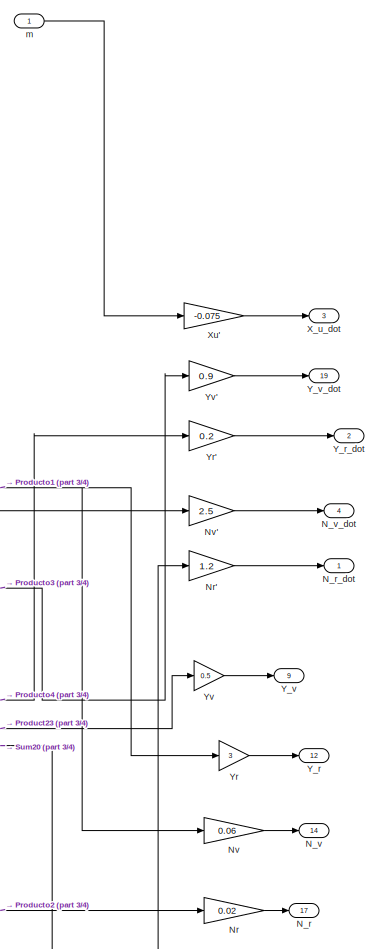
[diagram: Subsystem1/Subsystem4 - part 1/4, top right region]
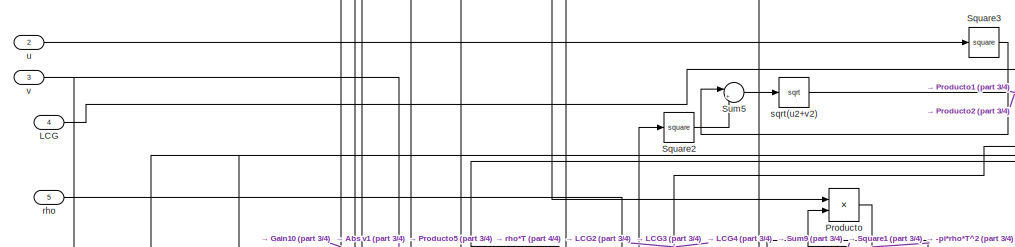
[diagram: Subsystem1/Subsystem4 - part 2/4, top left region]
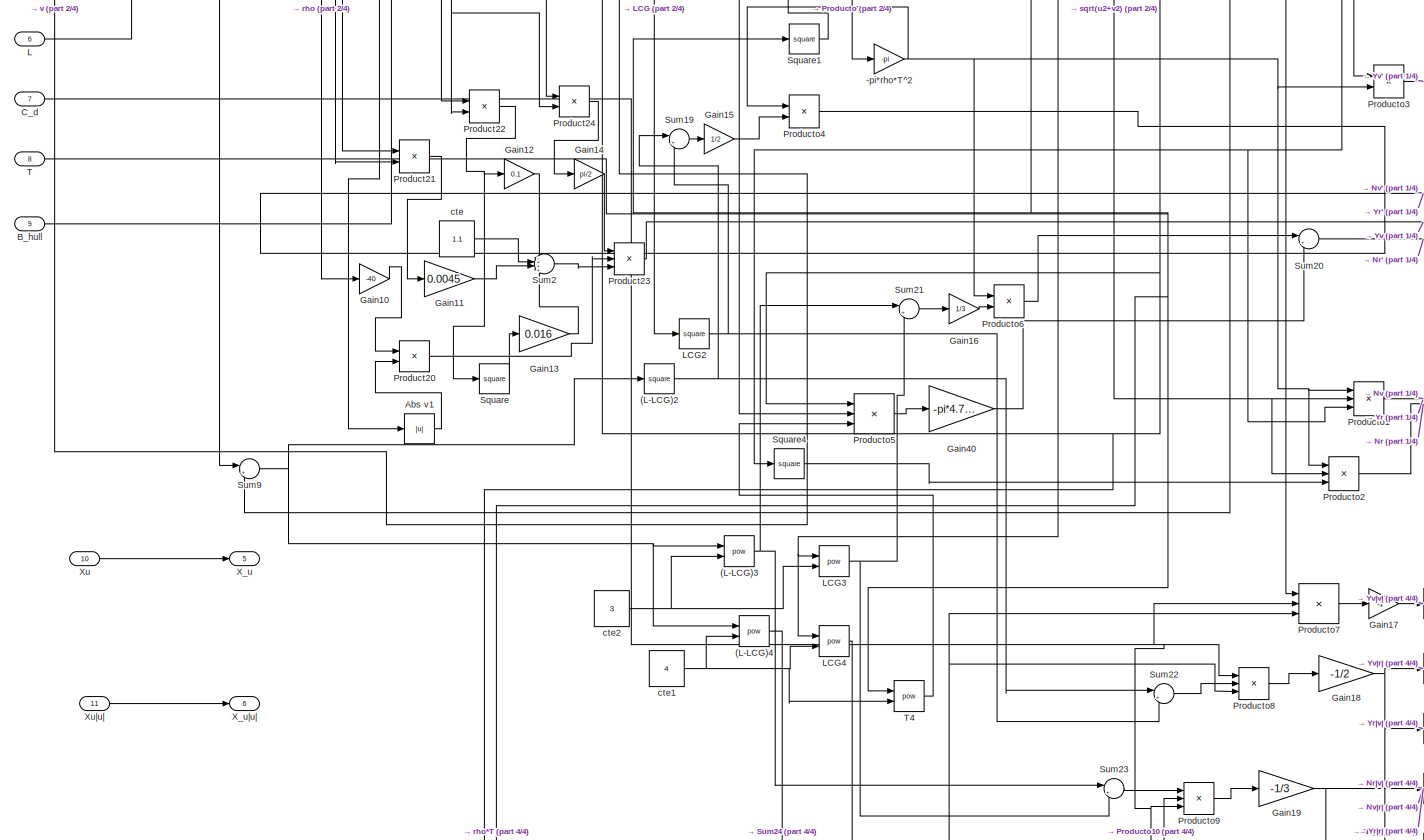
[diagram: Subsystem1/Subsystem4 - part 3/4, full width, middle band]
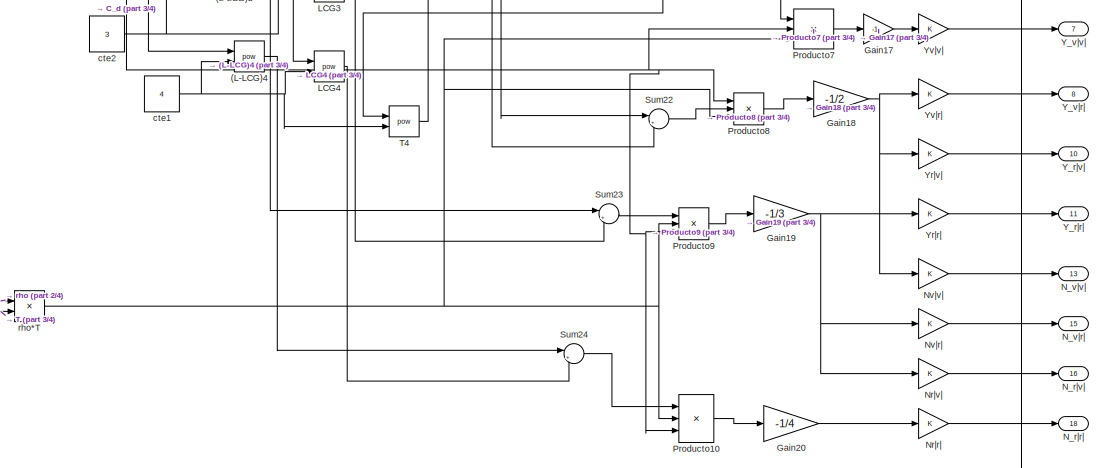
[diagram: Subsystem1/Subsystem4 - part 4/4, bottom center region]
BLOCK [SubSystem] Subsystem1/Subsystem4
  Ports = [11, 19]
  RequestExecContextInheritance = off
BLOCK [Math] Subsystem1/Subsystem4/(L-LCG)2
  Operator = square
  Ports = [1, 1]
BLOCK [Math] Subsystem1/Subsystem4/(L-LCG)3
  Operator = pow
  Ports = [2, 1]
BLOCK [Math] Subsystem1/Subsystem4/(L-LCG)4
  Operator = pow
  Ports = [2, 1]
BLOCK [Gain] Subsystem1/Subsystem4/-pi*rho*T^2
  Gain = -pi
  OutDataTypeStr = Inherit: Inherit via internal rule
  ParamDataTypeStr = Inherit: Inherit via internal rule
  SaturateOnIntegerOverflow = off
BLOCK [Abs] Subsystem1/Subsystem4/Abs v1
  SaturateOnIntegerOverflow = off
BLOCK [Inport] Subsystem1/Subsystem4/B_hull
  IconDisplay = Port number
  Port = 9
BLOCK [Inport] Subsystem1/Subsystem4/C_d
  IconDisplay = Port number
  Port = 7
BLOCK [Gain] Subsystem1/Subsystem4/Gain10
  Gain = -40
  OutDataTypeStr = Inherit: Inherit via internal rule
  ParamDataTypeStr = Inherit: Inherit via internal rule
  SaturateOnIntegerOverflow = off
BLOCK [Gain] Subsystem1/Subsystem4/Gain11
  Gain = 0.0045
  OutDataTypeStr = Inherit: Inherit via internal rule
  ParamDataTypeStr = Inherit: Inherit via internal rule
  SaturateOnIntegerOverflow = off
BLOCK [Gain] Subsystem1/Subsystem4/Gain12
  Gain = 0.1
  OutDataTypeStr = Inherit: Inherit via internal rule
  ParamDataTypeStr = Inherit: Inherit via internal rule
  SaturateOnIntegerOverflow = off
BLOCK [Gain] Subsystem1/Subsystem4/Gain13
  Gain = 0.016
  OutDataTypeStr = Inherit: Inherit via internal rule
  ParamDataTypeStr = Inherit: Inherit via internal rule
  SaturateOnIntegerOverflow = off
BLOCK [Gain] Subsystem1/Subsystem4/Gain14
  Gain = pi/2
  OutDataTypeStr = Inherit: Inherit via internal rule
  ParamDataTypeStr = Inherit: Inherit via internal rule
  SaturateOnIntegerOverflow = off
BLOCK [Gain] Subsystem1/Subsystem4/Gain15
  Gain = 1/2
  OutDataTypeStr = Inherit: Inherit via internal rule
  ParamDataTypeStr = Inherit: Inherit via internal rule
  SaturateOnIntegerOverflow = off
BLOCK [Gain] Subsystem1/Subsystem4/Gain16
  Gain = 1/3
  OutDataTypeStr = Inherit: Inherit via internal rule
  ParamDataTypeStr = Inherit: Inherit via internal rule
  SaturateOnIntegerOverflow = off
BLOCK [Gain] Subsystem1/Subsystem4/Gain17
  Gain = -1
  OutDataTypeStr = Inherit: Inherit via internal rule
  ParamDataTypeStr = Inherit: Inherit via internal rule
  SaturateOnIntegerOverflow = off
BLOCK [Gain] Subsystem1/Subsystem4/Gain18
  Gain = -1/2
  OutDataTypeStr = Inherit: Inherit via internal rule
  ParamDataTypeStr = Inherit: Inherit via internal rule
  SaturateOnIntegerOverflow = off
BLOCK [Gain] Subsystem1/Subsystem4/Gain19
  Gain = -1/3
  OutDataTypeStr = Inherit: Inherit via internal rule
  ParamDataTypeStr = Inherit: Inherit via internal rule
  SaturateOnIntegerOverflow = off
BLOCK [Gain] Subsystem1/Subsystem4/Gain20
  Gain = -1/4
  OutDataTypeStr = Inherit: Inherit via internal rule
  ParamDataTypeStr = Inherit: Inherit via internal rule
  SaturateOnIntegerOverflow = off
BLOCK [Gain] Subsystem1/Subsystem4/Gain40
  Gain = -pi*4.75/4
  OutDataTypeStr = Inherit: Inherit via internal rule
  ParamDataTypeStr = Inherit: Inherit via internal rule
  SaturateOnIntegerOverflow = off
BLOCK [Inport] Subsystem1/Subsystem4/L
  IconDisplay = Port number
  Port = 6
BLOCK [Inport] Subsystem1/Subsystem4/LCG
  IconDisplay = Port number
  Port = 4
BLOCK [Math] Subsystem1/Subsystem4/LCG2
  Operator = square
  Ports = [1, 1]
BLOCK [Math] Subsystem1/Subsystem4/LCG3
  Operator = pow
  Ports = [2, 1]
BLOCK [Math] Subsystem1/Subsystem4/LCG4
  Operator = pow
  Ports = [2, 1]
BLOCK [Outport] Subsystem1/Subsystem4/N_r
  IconDisplay = Port number
  Port = 17
  VectorParamsAs1DForOutWhenUnconnected = off
BLOCK [Outport] Subsystem1/Subsystem4/N_r_dot
  IconDisplay = Port number
  VectorParamsAs1DForOutWhenUnconnected = off
BLOCK [Outport] Subsystem1/Subsystem4/N_r|r|
  IconDisplay = Port number
  Port = 18
  VectorParamsAs1DForOutWhenUnconnected = off
BLOCK [Outport] Subsystem1/Subsystem4/N_r|v|
  IconDisplay = Port number
  Port = 16
  VectorParamsAs1DForOutWhenUnconnected = off
BLOCK [Outport] Subsystem1/Subsystem4/N_v
  IconDisplay = Port number
  Port = 14
  VectorParamsAs1DForOutWhenUnconnected = off
BLOCK [Outport] Subsystem1/Subsystem4/N_v_dot
  IconDisplay = Port number
  Port = 4
  VectorParamsAs1DForOutWhenUnconnected = off
BLOCK [Outport] Subsystem1/Subsystem4/N_v|r|
  IconDisplay = Port number
  Port = 15
  VectorParamsAs1DForOutWhenUnconnected = off
BLOCK [Outport] Subsystem1/Subsystem4/N_v|v|
  IconDisplay = Port number
  Port = 13
  VectorParamsAs1DForOutWhenUnconnected = off
BLOCK [Gain] Subsystem1/Subsystem4/Nr
  Gain = 0.02
  OutDataTypeStr = Inherit: Inherit via internal rule
  ParamDataTypeStr = Inherit: Inherit via internal rule
  SaturateOnIntegerOverflow = off
BLOCK [Gain] Subsystem1/Subsystem4/Nr'
  Gain = 1.2
  OutDataTypeStr = Inherit: Inherit via internal rule
  ParamDataTypeStr = Inherit: Inherit via internal rule
  SaturateOnIntegerOverflow = off
BLOCK [Gain] Subsystem1/Subsystem4/Nr|r|
  OutDataTypeStr = Inherit: Inherit via internal rule
  ParamDataTypeStr = Inherit: Inherit via internal rule
  SaturateOnIntegerOverflow = off
BLOCK [Gain] Subsystem1/Subsystem4/Nr|v|
  OutDataTypeStr = Inherit: Inherit via internal rule
  ParamDataTypeStr = Inherit: Inherit via internal rule
  SaturateOnIntegerOverflow = off
BLOCK [Gain] Subsystem1/Subsystem4/Nv
  Gain = 0.06
  OutDataTypeStr = Inherit: Inherit via internal rule
  ParamDataTypeStr = Inherit: Inherit via internal rule
  SaturateOnIntegerOverflow = off
BLOCK [Gain] Subsystem1/Subsystem4/Nv'
  Gain = 2.5
  OutDataTypeStr = Inherit: Inherit via internal rule
  ParamDataTypeStr = Inherit: Inherit via internal rule
  SaturateOnIntegerOverflow = off
BLOCK [Gain] Subsystem1/Subsystem4/Nv|r|
  OutDataTypeStr = Inherit: Inherit via internal rule
  ParamDataTypeStr = Inherit: Inherit via internal rule
  SaturateOnIntegerOverflow = off
BLOCK [Gain] Subsystem1/Subsystem4/Nv|v|
  OutDataTypeStr = Inherit: Inherit via internal rule
  ParamDataTypeStr = Inherit: Inherit via internal rule
  SaturateOnIntegerOverflow = off
BLOCK [Product] Subsystem1/Subsystem4/Product20
  InputSameDT = off
  OutDataTypeStr = Inherit: Inherit via internal rule
  Ports = [2, 1]
  RndMeth = Floor
  SaturateOnIntegerOverflow = off
BLOCK [Product] Subsystem1/Subsystem4/Product21
  InputSameDT = off
  Inputs = */
  OutDataTypeStr = Inherit: Inherit via internal rule
  Ports = [2, 1]
  RndMeth = Floor
  SaturateOnIntegerOverflow = off
BLOCK [Product] Subsystem1/Subsystem4/Product22
  InputSameDT = off
  Inputs = */
  OutDataTypeStr = Inherit: Inherit via internal rule
  Ports = [2, 1]
  RndMeth = Floor
  SaturateOnIntegerOverflow = off
BLOCK [Product] Subsystem1/Subsystem4/Product23
  InputSameDT = off
  Inputs = 3
  OutDataTypeStr = Inherit: Inherit via internal rule
  Ports = [3, 1]
  RndMeth = Floor
  SaturateOnIntegerOverflow = off
BLOCK [Product] Subsystem1/Subsystem4/Product24
  InputSameDT = off
  OutDataTypeStr = Inherit: Inherit via internal rule
  Ports = [2, 1]
  RndMeth = Floor
  SaturateOnIntegerOverflow = off
BLOCK [Product] Subsystem1/Subsystem4/Producto
  InputSameDT = off
  OutDataTypeStr = Inherit: Inherit via internal rule
  Ports = [2, 1]
  RndMeth = Floor
  SaturateOnIntegerOverflow = off
BLOCK [Product] Subsystem1/Subsystem4/Producto1
  InputSameDT = off
  Inputs = 3
  OutDataTypeStr = Inherit: Inherit via internal rule
  Ports = [3, 1]
  RndMeth = Floor
  SaturateOnIntegerOverflow = off
BLOCK [Product] Subsystem1/Subsystem4/Producto10
  InputSameDT = off
  Inputs = 3
  OutDataTypeStr = Inherit: Inherit via internal rule
  Ports = [3, 1]
  RndMeth = Floor
  SaturateOnIntegerOverflow = off
BLOCK [Product] Subsystem1/Subsystem4/Producto2
  InputSameDT = off
  Inputs = 3
  OutDataTypeStr = Inherit: Inherit via internal rule
  Ports = [3, 1]
  RndMeth = Floor
  SaturateOnIntegerOverflow = off
BLOCK [Product] Subsystem1/Subsystem4/Producto3
  InputSameDT = off
  OutDataTypeStr = Inherit: Inherit via internal rule
  Ports = [2, 1]
  RndMeth = Floor
  SaturateOnIntegerOverflow = off
BLOCK [Product] Subsystem1/Subsystem4/Producto4
  InputSameDT = off
  OutDataTypeStr = Inherit: Inherit via internal rule
  Ports = [2, 1]
  RndMeth = Floor
  SaturateOnIntegerOverflow = off
BLOCK [Product] Subsystem1/Subsystem4/Producto5
  InputSameDT = off
  Inputs = 3
  OutDataTypeStr = Inherit: Inherit via internal rule
  Ports = [3, 1]
  RndMeth = Floor
  SaturateOnIntegerOverflow = off
BLOCK [Product] Subsystem1/Subsystem4/Producto6
  InputSameDT = off
  OutDataTypeStr = Inherit: Inherit via internal rule
  Ports = [2, 1]
  RndMeth = Floor
  SaturateOnIntegerOverflow = off
BLOCK [Product] Subsystem1/Subsystem4/Producto7
  InputSameDT = off
  Inputs = 3
  OutDataTypeStr = Inherit: Inherit via internal rule
  Ports = [3, 1]
  RndMeth = Floor
  SaturateOnIntegerOverflow = off
BLOCK [Product] Subsystem1/Subsystem4/Producto8
  InputSameDT = off
  Inputs = 3
  OutDataTypeStr = Inherit: Inherit via internal rule
  Ports = [3, 1]
  RndMeth = Floor
  SaturateOnIntegerOverflow = off
BLOCK [Product] Subsystem1/Subsystem4/Producto9
  InputSameDT = off
  Inputs = 3
  OutDataTypeStr = Inherit: Inherit via internal rule
  Ports = [3, 1]
  RndMeth = Floor
  SaturateOnIntegerOverflow = off
BLOCK [Math] Subsystem1/Subsystem4/Square
  Operator = square
  Ports = [1, 1]
BLOCK [Math] Subsystem1/Subsystem4/Square1
  Operator = square
  Ports = [1, 1]
BLOCK [Math] Subsystem1/Subsystem4/Square2
  Operator = square
  Ports = [1, 1]
BLOCK [Math] Subsystem1/Subsystem4/Square3
  Operator = square
  Ports = [1, 1]
BLOCK [Math] Subsystem1/Subsystem4/Square4
  Operator = square
  Ports = [1, 1]
BLOCK [Sum] Subsystem1/Subsystem4/Sum19
  IconShape = round
  InputSameDT = off
  Inputs = |++
  OutDataTypeStr = Inherit: Inherit via internal rule
  Ports = [2, 1]
  SaturateOnIntegerOverflow = off
BLOCK [Sum] Subsystem1/Subsystem4/Sum2
  IconShape = round
  InputSameDT = off
  Inputs = -+++
  OutDataTypeStr = Inherit: Inherit via internal rule
  Ports = [4, 1]
  SaturateOnIntegerOverflow = off
BLOCK [Sum] Subsystem1/Subsystem4/Sum20
  IconShape = round
  InputSameDT = off
  Inputs = |++
  OutDataTypeStr = Inherit: Inherit via internal rule
  Ports = [2, 1]
  SaturateOnIntegerOverflow = off
BLOCK [Sum] Subsystem1/Subsystem4/Sum21
  IconShape = round
  InputSameDT = off
  Inputs = |++
  OutDataTypeStr = Inherit: Inherit via internal rule
  Ports = [2, 1]
  SaturateOnIntegerOverflow = off
BLOCK [Sum] Subsystem1/Subsystem4/Sum22
  IconShape = round
  InputSameDT = off
  Inputs = |+-
  OutDataTypeStr = Inherit: Inherit via internal rule
  Ports = [2, 1]
  SaturateOnIntegerOverflow = off
BLOCK [Sum] Subsystem1/Subsystem4/Sum23
  IconShape = round
  InputSameDT = off
  Inputs = |++
  OutDataTypeStr = Inherit: Inherit via internal rule
  Ports = [2, 1]
  SaturateOnIntegerOverflow = off
BLOCK [Sum] Subsystem1/Subsystem4/Sum24
  IconShape = round
  InputSameDT = off
  Inputs = |++
  OutDataTypeStr = Inherit: Inherit via internal rule
  Ports = [2, 1]
  SaturateOnIntegerOverflow = off
BLOCK [Sum] Subsystem1/Subsystem4/Sum5
  IconShape = round
  InputSameDT = off
  Inputs = |++
  OutDataTypeStr = Inherit: Inherit via internal rule
  Ports = [2, 1]
  SaturateOnIntegerOverflow = off
BLOCK [Sum] Subsystem1/Subsystem4/Sum9
  IconShape = round
  InputSameDT = off
  Inputs = |+-
  OutDataTypeStr = Inherit: Inherit via internal rule
  Ports = [2, 1]
  SaturateOnIntegerOverflow = off
BLOCK [Inport] Subsystem1/Subsystem4/T
  IconDisplay = Port number
  Port = 8
BLOCK [Math] Subsystem1/Subsystem4/T4
  Operator = pow
  Ports = [2, 1]
BLOCK [Outport] Subsystem1/Subsystem4/X_u
  IconDisplay = Port number
  Port = 5
  VectorParamsAs1DForOutWhenUnconnected = off
BLOCK [Outport] Subsystem1/Subsystem4/X_u_dot
  IconDisplay = Port number
  Port = 3
  VectorParamsAs1DForOutWhenUnconnected = off
BLOCK [Outport] Subsystem1/Subsystem4/X_u|u|
  IconDisplay = Port number
  Port = 6
  VectorParamsAs1DForOutWhenUnconnected = off
BLOCK [Inport] Subsystem1/Subsystem4/Xu
  IconDisplay = Port number
  Port = 10
BLOCK [Gain] Subsystem1/Subsystem4/Xu'
  Gain = -0.075
  OutDataTypeStr = Inherit: Inherit via internal rule
  ParamDataTypeStr = Inherit: Inherit via internal rule
  SaturateOnIntegerOverflow = off
BLOCK [Inport] Subsystem1/Subsystem4/Xu|u|
  IconDisplay = Port number
  Port = 11
BLOCK [Outport] Subsystem1/Subsystem4/Y_r
  IconDisplay = Port number
  Port = 12
  VectorParamsAs1DForOutWhenUnconnected = off
BLOCK [Outport] Subsystem1/Subsystem4/Y_r_dot
  IconDisplay = Port number
  Port = 2
  VectorParamsAs1DForOutWhenUnconnected = off
BLOCK [Outport] Subsystem1/Subsystem4/Y_r|r|
  IconDisplay = Port number
  Port = 11
  VectorParamsAs1DForOutWhenUnconnected = off
BLOCK [Outport] Subsystem1/Subsystem4/Y_r|v|
  IconDisplay = Port number
  Port = 10
  VectorParamsAs1DForOutWhenUnconnected = off
BLOCK [Outport] Subsystem1/Subsystem4/Y_v
  IconDisplay = Port number
  Port = 9
  VectorParamsAs1DForOutWhenUnconnected = off
BLOCK [Outport] Subsystem1/Subsystem4/Y_v_dot
  IconDisplay = Port number
  Port = 19
  VectorParamsAs1DForOutWhenUnconnected = off
BLOCK [Outport] Subsystem1/Subsystem4/Y_v|r|
  IconDisplay = Port number
  Port = 8
  VectorParamsAs1DForOutWhenUnconnected = off
BLOCK [Outport] Subsystem1/Subsystem4/Y_v|v|
  IconDisplay = Port number
  Port = 7
  VectorParamsAs1DForOutWhenUnconnected = off
BLOCK [Gain] Subsystem1/Subsystem4/Yr
  Gain = 3
  OutDataTypeStr = Inherit: Inherit via internal rule
  ParamDataTypeStr = Inherit: Inherit via internal rule
  SaturateOnIntegerOverflow = off
BLOCK [Gain] Subsystem1/Subsystem4/Yr'
  Gain = 0.2
  OutDataTypeStr = Inherit: Inherit via internal rule
  ParamDataTypeStr = Inherit: Inherit via internal rule
  SaturateOnIntegerOverflow = off
BLOCK [Gain] Subsystem1/Subsystem4/Yr|r|
  OutDataTypeStr = Inherit: Inherit via internal rule
  ParamDataTypeStr = Inherit: Inherit via internal rule
  SaturateOnIntegerOverflow = off
BLOCK [Gain] Subsystem1/Subsystem4/Yr|v|
  OutDataTypeStr = Inherit: Inherit via internal rule
  ParamDataTypeStr = Inherit: Inherit via internal rule
  SaturateOnIntegerOverflow = off
BLOCK [Gain] Subsystem1/Subsystem4/Yv
  Gain = 0.5
  OutDataTypeStr = Inherit: Inherit via internal rule
  ParamDataTypeStr = Inherit: Inherit via internal rule
  SaturateOnIntegerOverflow = off
BLOCK [Gain] Subsystem1/Subsystem4/Yv'
  Gain = 0.9
  OutDataTypeStr = Inherit: Inherit via internal rule
  ParamDataTypeStr = Inherit: Inherit via internal rule
  SaturateOnIntegerOverflow = off
BLOCK [Gain] Subsystem1/Subsystem4/Yv|r|
  OutDataTypeStr = Inherit: Inherit via internal rule
  ParamDataTypeStr = Inherit: Inherit via internal rule
  SaturateOnIntegerOverflow = off
BLOCK [Gain] Subsystem1/Subsystem4/Yv|v|
  OutDataTypeStr = Inherit: Inherit via internal rule
  ParamDataTypeStr = Inherit: Inherit via internal rule
  SaturateOnIntegerOverflow = off
BLOCK [Constant] Subsystem1/Subsystem4/cte
  Value = 1.1
BLOCK [Constant] Subsystem1/Subsystem4/cte1
  Value = 4
BLOCK [Constant] Subsystem1/Subsystem4/cte2
  Value = 3
BLOCK [Inport] Subsystem1/Subsystem4/m
  IconDisplay = Port number
BLOCK [Inport] Subsystem1/Subsystem4/rho
  IconDisplay = Port number
  Port = 5
BLOCK [Product] Subsystem1/Subsystem4/rho*T
  InputSameDT = off
  OutDataTypeStr = Inherit: Inherit via internal rule
  Ports = [2, 1]
  RndMeth = Floor
  SaturateOnIntegerOverflow = off
BLOCK [Sqrt] Subsystem1/Subsystem4/sqrt(u2+v2)
BLOCK [Inport] Subsystem1/Subsystem4/u
  IconDisplay = Port number
  Port = 2
BLOCK [Inport] Subsystem1/Subsystem4/v
  IconDisplay = Port number
  Port = 3
BLOCK [SubSystem] Subsystem1/Subsystem5
  Ports = [1, 1]
  RequestExecContextInheritance = off
BLOCK [Reference] Subsystem1/Subsystem5/ J(n)  REF=sharedutil/Create 3x3 Matrix
  Ports = [9, 1]
  SourceBlock = sharedutil/Create 3x3 Matrix
  SourceProductBaseCode = AE
  SourceProductName = Aerospace Blockset
  SourceType = Create 3x3 Matrix
BLOCK [Constant] Subsystem1/Subsystem5/Constant1
BLOCK [Constant] Subsystem1/Subsystem5/Constant2
  Value = 0
BLOCK [Gain] Subsystem1/Subsystem5/Gain9
  Gain = -1
  OutDataTypeStr = Inherit: Inherit via internal rule
  ParamDataTypeStr = Inherit: Inherit via internal rule
  SaturateOnIntegerOverflow = off
BLOCK [Outport] Subsystem1/Subsystem5/J(n)
  IconDisplay = Port number
  VectorParamsAs1DForOutWhenUnconnected = off
BLOCK [Trigonometry] Subsystem1/Subsystem5/Trigonometric Function
  Ports = [1, 1]
BLOCK [Trigonometry] Subsystem1/Subsystem5/Trigonometric Function1
  Operator = cos
  Ports = [1, 1]
BLOCK [Inport] Subsystem1/Subsystem5/psi
  IconDisplay = Port number
BLOCK [Switch] Subsystem1/Switch
  Criteria = u2 > Threshold
  InputSameDT = off
  SaturateOnIntegerOverflow = off
  Threshold = 1.2
BLOCK [Switch] Subsystem1/Switch1
  Criteria = u2 > Threshold
  InputSameDT = off
  SaturateOnIntegerOverflow = off
  Threshold = 1.2
BLOCK [Constant] Subsystem1/T
  Value = 0.09
BLOCK [Sum] Subsystem1/T - C(v)v - D(v)v
  InputSameDT = off
  Inputs = ++--
  OutDataTypeStr = Inherit: Inherit via internal rule
  Ports = [4, 1]
  SaturateOnIntegerOverflow = off
BLOCK [Inport] Subsystem1/Tport
  IconDisplay = Port number
BLOCK [Inport] Subsystem1/Tstbd
  IconDisplay = Port number
  Port = 2
BLOCK [Reference] Subsystem1/Wrap To Zero  REF=simulink/Discontinuities/Wrap To Zero
  Ports = [1, 1]
  SourceBlock = simulink/Discontinuities/Wrap To Zero
  SourceProductBaseCode = SL
  SourceProductName = Simulink
  SourceType = Wrap To Zero
BLOCK [Constant] Subsystem1/XG
  Value = 0
BLOCK [Outport] Subsystem1/X_u
  IconDisplay = Port number
  Port = 10
  VectorParamsAs1DForOutWhenUnconnected = off
BLOCK [Outport] Subsystem1/X_u_dot
  IconDisplay = Port number
  Port = 6
  VectorParamsAs1DForOutWhenUnconnected = off
BLOCK [Outport] Subsystem1/X_u|u|
  IconDisplay = Port number
  Port = 11
  VectorParamsAs1DForOutWhenUnconnected = off
BLOCK [Constant] Subsystem1/Xu linear
  Value = 64.55
BLOCK [Constant] Subsystem1/Xu poly
  Value = -25
BLOCK [Constant] Subsystem1/Xu|u| linear
  Value = -70.92
BLOCK [Constant] Subsystem1/Xu|u| poly
  Value = 0
BLOCK [Constant] Subsystem1/YG
  Value = 0
BLOCK [Outport] Subsystem1/Y_v_dot
  IconDisplay = Port number
  Port = 7
  VectorParamsAs1DForOutWhenUnconnected = off
BLOCK [Outport] Subsystem1/m
  IconDisplay = Port number
  Port = 3
  VectorParamsAs1DForOutWhenUnconnected = off
BLOCK [Constant] Subsystem1/mass
  Value = 30
BLOCK [Outport] Subsystem1/n
  IconDisplay = Port number
  VectorParamsAs1DForOutWhenUnconnected = off
BLOCK [Integrator] Subsystem1/n - global
  InitialCondition = [0 0 0]
  Ports = [1, 1]
BLOCK [Product] Subsystem1/n' - global
  InputSameDT = off
  Multiplication = Matrix(*)
  OutDataTypeStr = Inherit: Inherit via internal rule
  Ports = [2, 1]
  RndMeth = Floor
  SaturateOnIntegerOverflow = off
BLOCK [Constant] Subsystem1/rho
  Value = 1000
BLOCK [Outport] Subsystem1/v
  IconDisplay = Port number
  Port = 2
  VectorParamsAs1DForOutWhenUnconnected = off
BLOCK [Integrator] Subsystem1/v - local
  Ports = [1, 1]
BLOCK [Product] Subsystem1/v' - local
  InputSameDT = off
  Multiplication = Matrix(*)
  OutDataTypeStr = Inherit: Inherit via internal rule
  Ports = [2, 1]
  RndMeth = Floor
  SaturateOnIntegerOverflow = off
BLOCK [Sum] Sum
  IconShape = round
  InputSameDT = off
  OutDataTypeStr = Inherit: Inherit via internal rule
  Ports = [2, 1]
  SaturateOnIntegerOverflow = off
BLOCK [Scope] Surge Speed
  Floating = off
  NumInputPorts = 2
  Ports = [2]
  ScopeSpecificationString = Simulink.scopes.TimeScopeBlockCfg('CurrentConfiguration', extmgr.ConfigurationSet(extmgr.Configuration('Core','General UI',true),extmgr.Configuration('Core','Source UI',true),extmgr.Configuration('Sources','WiredSimulink',true,'DataLoggingVariableName','ScopeData3'),extmgr.Configuration('Visuals','Time Domain',true,'SerializedDisplays',{struct('MinYLimReal','-0.08928','MaxYLimReal','0.80348','YLab...<+1477ch>
BLOCK [Scope] Sway speed
  Floating = off
  NumInputPorts = 1
  Ports = [1]
  ScopeSpecificationString = Simulink.scopes.TimeScopeBlockCfg('CurrentConfiguration', extmgr.ConfigurationSet(extmgr.Configuration('Core','General UI',true),extmgr.Configuration('Core','Source UI',true),extmgr.Configuration('Sources','WiredSimulink',true,'DataLoggingVariableName','ScopeData10'),extmgr.Configuration('Visuals','Time Domain',true,'SerializedDisplays',{struct('MinYLimReal','-0.06096','MaxYLimReal','0.04877','YLa...<+1441ch>
BLOCK [Scope] Thrust N
  Floating = off
  NumInputPorts = 2
  Ports = [2]
  ScopeSpecificationString = Simulink.scopes.TimeScopeBlockCfg('CurrentConfiguration', extmgr.ConfigurationSet(extmgr.Configuration('Core','General UI',true),extmgr.Configuration('Core','Source UI',true),extmgr.Configuration('Sources','WiredSimulink',true,'DataLoggingVariableName','ScopeData1'),extmgr.Configuration('Visuals','Time Domain',true,'SerializedDisplays',{struct('MinYLimReal','3.63719','MaxYLimReal','18.04731','YLab...<+1482ch>
BLOCK [Scope] Thrust pwm
  Floating = off
  NumInputPorts = 2
  Ports = [2]
  ScopeSpecificationString = Simulink.scopes.TimeScopeBlockCfg('CurrentConfiguration', extmgr.ConfigurationSet(extmgr.Configuration('Core','General UI',true),extmgr.Configuration('Core','Source UI',true),extmgr.Configuration('Sources','WiredSimulink',true,'DataLoggingVariableName','ScopeData2'),extmgr.Configuration('Visuals','Time Domain',true,'SerializedDisplays',{struct('MinYLimReal','-44.93095','MaxYLimReal','335.95181','Y...<+1484ch>
BLOCK [SubSystem] Tx
  Ports = [12, 1]
  RequestExecContextInheritance = off
BLOCK [Scope] Tx Tz
  Floating = off
  NumInputPorts = 2
  Ports = [2]
  ScopeSpecificationString = Simulink.scopes.TimeScopeBlockCfg('CurrentConfiguration', extmgr.ConfigurationSet(extmgr.Configuration('Core','General UI',true),extmgr.Configuration('Core','Source UI',true),extmgr.Configuration('Sources','WiredSimulink',true,'DataLoggingVariableName','ScopeData1'),extmgr.Configuration('Visuals','Time Domain',true,'SerializedDisplays',{struct('MinYLimReal','-2.53093','MaxYLimReal','2.88617','YLab...<+1483ch>
BLOCK [SubSystem] Tx/(m-Yv')vr
  Ports = [4, 1]
  RequestExecContextInheritance = off
BLOCK [Outport] Tx/(m-Yv')vr/(m-Yv')vr
  IconDisplay = Port number
  VectorParamsAs1DForOutWhenUnconnected = off
BLOCK [Product] Tx/(m-Yv')vr/Product
  InputSameDT = off
  Inputs = 3
  OutDataTypeStr = Inherit: Inherit via internal rule
  Ports = [3, 1]
  RndMeth = Floor
  SaturateOnIntegerOverflow = off
BLOCK [Inport] Tx/(m-Yv')vr/Yv'
  IconDisplay = Port number
  Port = 2
BLOCK [Inport] Tx/(m-Yv')vr/m
  IconDisplay = Port number
BLOCK [Sum] Tx/(m-Yv')vr/m-Yv'
  InputSameDT = off
  Inputs = +-
  OutDataTypeStr = Inherit: Inherit via internal rule
  Ports = [2, 1]
  SaturateOnIntegerOverflow = off
BLOCK [Inport] Tx/(m-Yv')vr/r
  IconDisplay = Port number
  Port = 4
BLOCK [Inport] Tx/(m-Yv')vr/v
  IconDisplay = Port number
  Port = 3
BLOCK [Constant] Tx/0
  SampleTime = Inf
  Value = 0
BLOCK [Sum] Tx/Add
  InputSameDT = off
  Inputs = +--
  OutDataTypeStr = Inherit: Inherit via internal rule
  Ports = [3, 1]
  SaturateOnIntegerOverflow = off
BLOCK [Sum] Tx/Add1
  InputSameDT = off
  Inputs = ++-
  OutDataTypeStr = Inherit: Inherit via internal rule
  Ports = [3, 1]
  SaturateOnIntegerOverflow = off
BLOCK [Product] Tx/Product
  InputSameDT = off
  OutDataTypeStr = Inherit: Inherit via internal rule
  Ports = [2, 1]
  RndMeth = Floor
  SaturateOnIntegerOverflow = off
BLOCK [Product] Tx/Product1
  InputSameDT = off
  OutDataTypeStr = Inherit: Inherit via internal rule
  Ports = [2, 1]
  RndMeth = Floor
  SaturateOnIntegerOverflow = off
BLOCK [Sum] Tx/Sum
  IconShape = round
  InputSameDT = off
  Inputs = |+-
  OutDataTypeStr = Inherit: Inherit via internal rule
  Ports = [2, 1]
  SaturateOnIntegerOverflow = off
BLOCK [Outport] Tx/Tx
  IconDisplay = Port number
  VectorParamsAs1DForOutWhenUnconnected = off
BLOCK [SubSystem] Tx/Xdrag
  Ports = [3, 1]
  RequestExecContextInheritance = off
BLOCK [Abs] Tx/Xdrag/Abs
  SaturateOnIntegerOverflow = off
BLOCK [Sum] Tx/Xdrag/Add
  InputSameDT = off
  OutDataTypeStr = Inherit: Inherit via internal rule
  Ports = [2, 1]
  SaturateOnIntegerOverflow = off
BLOCK [Product] Tx/Xdrag/Product
  InputSameDT = off
  Inputs = 3
  OutDataTypeStr = Inherit: Inherit via internal rule
  Ports = [3, 1]
  RndMeth = Floor
  SaturateOnIntegerOverflow = off
BLOCK [Product] Tx/Xdrag/Product1
  InputSameDT = off
  OutDataTypeStr = Inherit: Inherit via internal rule
  Ports = [2, 1]
  RndMeth = Floor
  SaturateOnIntegerOverflow = off
BLOCK [Outport] Tx/Xdrag/Xdrag
  IconDisplay = Port number
  VectorParamsAs1DForOutWhenUnconnected = off
BLOCK [Inport] Tx/Xdrag/Xu
  IconDisplay = Port number
  Port = 2
BLOCK [Inport] Tx/Xdrag/Xu|u|
  IconDisplay = Port number
  Port = 3
BLOCK [Inport] Tx/Xdrag/u
  IconDisplay = Port number
BLOCK [Inport] Tx/Xu
  IconDisplay = Port number
  Port = 11
BLOCK [Inport] Tx/Xu'
  IconDisplay = Port number
  Port = 6
BLOCK [Inport] Tx/Xu|u|
  IconDisplay = Port number
  Port = 12
BLOCK [Inport] Tx/Yv'
  IconDisplay = Port number
  Port = 7
BLOCK [Inport] Tx/lambda
  IconDisplay = Port number
  Port = 5
BLOCK [Inport] Tx/m
  IconDisplay = Port number
  Port = 3
BLOCK [Sum] Tx/m-Xu'
  InputSameDT = off
  Inputs = +-
  OutDataTypeStr = Inherit: Inherit via internal rule
  Ports = [2, 1]
  SaturateOnIntegerOverflow = off
BLOCK [Inport] Tx/r
  IconDisplay = Port number
  Port = 10
BLOCK [Inport] Tx/u
  IconDisplay = Port number
  Port = 8
BLOCK [Inport] Tx/u'_d
  IconDisplay = Port number
  Port = 2
BLOCK [ManualSwitch] Tx/u'd or 0
BLOCK [Inport] Tx/u_d
  IconDisplay = Port number
BLOCK [Inport] Tx/ua
  IconDisplay = Port number
  Port = 4
BLOCK [Inport] Tx/v
  IconDisplay = Port number
  Port = 9
BLOCK [SubSystem] Tz
  Ports = [10, 1]
  RequestExecContextInheritance = off
BLOCK [SubSystem] Tz/(-Xu'+Yv')uv
  Ports = [4, 1]
  RequestExecContextInheritance = off
BLOCK [Outport] Tz/(-Xu'+Yv')uv/(-Xu'+Yv')uv
  IconDisplay = Port number
  VectorParamsAs1DForOutWhenUnconnected = off
BLOCK [Sum] Tz/(-Xu'+Yv')uv/-Xu'+Yv'
  InputSameDT = off
  Inputs = -+
  OutDataTypeStr = Inherit: Inherit via internal rule
  Ports = [2, 1]
  SaturateOnIntegerOverflow = off
BLOCK [Product] Tz/(-Xu'+Yv')uv/Product
  InputSameDT = off
  Inputs = 3
  OutDataTypeStr = Inherit: Inherit via internal rule
  Ports = [3, 1]
  RndMeth = Floor
  SaturateOnIntegerOverflow = off
BLOCK [Inport] Tz/(-Xu'+Yv')uv/Xu'
  IconDisplay = Port number
BLOCK [Inport] Tz/(-Xu'+Yv')uv/Yv'
  IconDisplay = Port number
  Port = 2
BLOCK [Inport] Tz/(-Xu'+Yv')uv/u
  IconDisplay = Port number
  Port = 4
BLOCK [Inport] Tz/(-Xu'+Yv')uv/v
  IconDisplay = Port number
  Port = 3
BLOCK [Sum] Tz/Add
  InputSameDT = off
  Inputs = +--
  OutDataTypeStr = Inherit: Inherit via internal rule
  Ports = [3, 1]
  SaturateOnIntegerOverflow = off
BLOCK [Sum] Tz/Add1
  InputSameDT = off
  Inputs = +-
  OutDataTypeStr = Inherit: Inherit via internal rule
  Ports = [2, 1]
  SaturateOnIntegerOverflow = off
BLOCK [Gain] Tz/Gain
  Gain = -1
  OutDataTypeStr = Inherit: Inherit via internal rule
  ParamDataTypeStr = Inherit: Inherit via internal rule
  SaturateOnIntegerOverflow = off
BLOCK [Inport] Tz/Iz
  IconDisplay = Port number
BLOCK [Sum] Tz/Iz-Nr'
  InputSameDT = off
  Inputs = +-
  OutDataTypeStr = Inherit: Inherit via internal rule
  Ports = [2, 1]
  SaturateOnIntegerOverflow = off
BLOCK [Inport] Tz/Nr
  IconDisplay = Port number
  Port = 9
BLOCK [Inport] Tz/Nr'
  IconDisplay = Port number
  Port = 10
BLOCK [SubSystem] Tz/Nrr
  Ports = [2, 1]
  RequestExecContextInheritance = off
BLOCK [Inport] Tz/Nrr/Nr
  IconDisplay = Port number
  Port = 2
BLOCK [Outport] Tz/Nrr/Nrr
  IconDisplay = Port number
  VectorParamsAs1DForOutWhenUnconnected = off
BLOCK [Product] Tz/Nrr/Product1
  InputSameDT = off
  OutDataTypeStr = Inherit: Inherit via internal rule
  Ports = [2, 1]
  RndMeth = Floor
  SaturateOnIntegerOverflow = off
BLOCK [Inport] Tz/Nrr/r
  IconDisplay = Port number
BLOCK [Product] Tz/Product
  InputSameDT = off
  OutDataTypeStr = Inherit: Inherit via internal rule
  Ports = [2, 1]
  RndMeth = Floor
  SaturateOnIntegerOverflow = off
BLOCK [Product] Tz/Product1
  InputSameDT = off
  OutDataTypeStr = Inherit: Inherit via internal rule
  Ports = [2, 1]
  RndMeth = Floor
  SaturateOnIntegerOverflow = off
BLOCK [Outport] Tz/Tz
  IconDisplay = Port number
  VectorParamsAs1DForOutWhenUnconnected = off
BLOCK [Inport] Tz/Xu'
  IconDisplay = Port number
  Port = 4
BLOCK [Inport] Tz/Yv'
  IconDisplay = Port number
  Port = 5
BLOCK [Inport] Tz/lambda
  IconDisplay = Port number
  Port = 3
BLOCK [Inport] Tz/r
  IconDisplay = Port number
  Port = 8
BLOCK [Inport] Tz/u
  IconDisplay = Port number
  Port = 6
BLOCK [Inport] Tz/ua
  IconDisplay = Port number
  Port = 2
BLOCK [Inport] Tz/v
  IconDisplay = Port number
  Port = 7
BLOCK [Reference] XY Graph  REF=simulink/Sinks/XY Graph
  Ports = [2]
  SourceBlock = simulink/Sinks/XY Graph
  SourceProductBaseCode = SL
  SourceProductName = Simulink
  SourceType = XY scope.
BLOCK [Scope] Yaw
  Floating = off
  NumInputPorts = 2
  Ports = [2]
  ScopeSpecificationString = Simulink.scopes.TimeScopeBlockCfg('CurrentConfiguration', extmgr.ConfigurationSet(extmgr.Configuration('Core','General UI',true),extmgr.Configuration('Core','Source UI',true),extmgr.Configuration('Sources','WiredSimulink',true,'DataLoggingVariableName','ScopeData1'),extmgr.Configuration('Visuals','Time Domain',true,'SerializedDisplays',{struct('MinYLimReal','-3.13358','MaxYLimReal','3.13644','YLab...<+1477ch>
BLOCK [Scope] Yaw Deg
  Floating = off
  NumInputPorts = 2
  Ports = [2]
  ScopeSpecificationString = Simulink.scopes.TimeScopeBlockCfg('CurrentConfiguration', extmgr.ConfigurationSet(extmgr.Configuration('Core','General UI',true),extmgr.Configuration('Core','Source UI',true),extmgr.Configuration('Sources','WiredSimulink',true,'DataLoggingVariableName','ScopeData2'),extmgr.Configuration('Visuals','Time Domain',true,'SerializedDisplays',{struct('MinYLimReal','7.07732','MaxYLimReal','27.04297','YLab...<+1474ch>
BLOCK [Scope] Yaw rate
  Floating = off
  NumInputPorts = 2
  Ports = [2]
  ScopeSpecificationString = Simulink.scopes.TimeScopeBlockCfg('CurrentConfiguration', extmgr.ConfigurationSet(extmgr.Configuration('Core','General UI',true),extmgr.Configuration('Core','Source UI',true),extmgr.Configuration('Sources','WiredSimulink',true,'DataLoggingVariableName','ScopeData1'),extmgr.Configuration('Visuals','Time Domain',true,'SerializedDisplays',{struct('MinYLimReal','-0.32176','MaxYLimReal','0.38027','YLab...<+1447ch>
BLOCK [Scope] control
  Floating = off
  NumInputPorts = 2
  Ports = [2]
  ScopeSpecificationString = Simulink.scopes.TimeScopeBlockCfg('CurrentConfiguration', extmgr.ConfigurationSet(extmgr.Configuration('Core','General UI',true),extmgr.Configuration('Core','Source UI',true),extmgr.Configuration('Sources','WiredSimulink',true,'DataLoggingVariableName','ScopeData7'),extmgr.Configuration('Visuals','Time Domain',true,'SerializedDisplays',{struct('MinYLimReal','-0.74185','MaxYLimReal','0.67544','YLab...<+1476ch>
BLOCK [Scope] gain
  Floating = off
  NumInputPorts = 2
  Ports = [2]
  ScopeSpecificationString = Simulink.scopes.TimeScopeBlockCfg('CurrentConfiguration', extmgr.ConfigurationSet(extmgr.Configuration('Core','General UI',true),extmgr.Configuration('Core','Source UI',true),extmgr.Configuration('Sources','WiredSimulink',true,'DataLoggingVariableName','ScopeData4'),extmgr.Configuration('Visuals','Time Domain',true,'SerializedDisplays',{struct('MinYLimReal','-0.28877','MaxYLimReal','2.59894','YLab...<+1477ch>
BLOCK [Scope] sigma
  Floating = off
  NumInputPorts = 2
  Ports = [2]
  ScopeSpecificationString = Simulink.scopes.TimeScopeBlockCfg('CurrentConfiguration', extmgr.ConfigurationSet(extmgr.Configuration('Core','General UI',true),extmgr.Configuration('Core','Source UI',true),extmgr.Configuration('Sources','WiredSimulink',true,'DataLoggingVariableName','ScopeData9'),extmgr.Configuration('Visuals','Time Domain',true,'SerializedDisplays',{struct('MinYLimReal','-0.0875','MaxYLimReal','0.7875','YLabel...<+1470ch>
LINE 0:1 -> Tx:2
NET ASMCpsi/Abs:1 -> ASMCpsi/Fcn:1, ASMCpsi/Sum5:1, ASMCpsi/sigma:1
LINE ASMCpsi/Fcn:1 -> ASMCpsi/Product:2
LINE ASMCpsi/Gain2:1 -> ASMCpsi/Product:1
NET ASMCpsi/Integrator:1 -> ASMCpsi/Gain2:1, ASMCpsi/Ka:1, ASMCpsi/Switch:2, ASMCpsi/gain:1
NET ASMCpsi/Lambda:1 -> ASMCpsi/Product1:1, ASMCpsi/lambda:1
LINE ASMCpsi/Product1:1 -> ASMCpsi/Sum3:1
LINE ASMCpsi/Product:1 -> ASMCpsi/Sum4:1
LINE ASMCpsi/Sign1:1 -> ASMCpsi/k:1
LINE ASMCpsi/Sign:1 -> ASMCpsi/Product:3
LINE ASMCpsi/Sum1:1 -> ASMCpsi/Product1:2
LINE ASMCpsi/Sum2:1 -> ASMCpsi/k1:1
NET ASMCpsi/Sum3:1 -> ASMCpsi/Abs:1, ASMCpsi/Sign:1, ASMCpsi/k2:1
LINE ASMCpsi/Sum4:1 -> ASMCpsi/u:1
LINE ASMCpsi/Sum5:1 -> ASMCpsi/Sign1:1
NET ASMCpsi/Switch:1 -> ASMCpsi/Integrator:1, ASMCpsi/gain1:1
LINE ASMCpsi/k1:1 -> ASMCpsi/Sum3:2
LINE ASMCpsi/k2:1 -> ASMCpsi/Sum4:2
LINE ASMCpsi/k:1 -> ASMCpsi/Switch:1
LINE ASMCpsi/kmin:1 -> ASMCpsi/Switch:3
LINE ASMCpsi/miu:1 -> ASMCpsi/Sum5:2
LINE ASMCpsi/x':1 -> ASMCpsi/Sum2:2
LINE ASMCpsi/x'_d:1 -> ASMCpsi/Sum2:1
LINE ASMCpsi/x:1 -> ASMCpsi/Sum1:2
LINE ASMCpsi/x_d:1 -> ASMCpsi/Sum1:1
NET ASMCpsi:1 -> Tz:2, control:2
LINE ASMCpsi:2 -> Tz:3
LINE ASMCpsi:3 -> gain:2
LINE ASMCpsi:4 -> sigma:2
NET ASMCu/Abs:1 -> ASMCu/Fcn:1, ASMCu/Sum5:1, ASMCu/sigma:1
LINE ASMCu/Fcn:1 -> ASMCu/Product:2
NET ASMCu/Integrator:1 -> ASMCu/Ka:1, ASMCu/Product:1, ASMCu/Switch:2, ASMCu/gain:1
NET ASMCu/Lambda:1 -> ASMCu/Product1:1, ASMCu/lambda:1
LINE ASMCu/Product1:1 -> ASMCu/Sum3:1
LINE ASMCu/Product:1 -> ASMCu/Sum4:1
LINE ASMCu/Sign1:1 -> ASMCu/k:1
LINE ASMCu/Sign:1 -> ASMCu/Product:3
LINE ASMCu/Sum1:1 -> ASMCu/Product1:2
LINE ASMCu/Sum2:1 -> ASMCu/Sum3:2
NET ASMCu/Sum3:1 -> ASMCu/Abs:1, ASMCu/Sign:1, ASMCu/k2:1
LINE ASMCu/Sum4:1 -> ASMCu/u:1
LINE ASMCu/Sum5:1 -> ASMCu/Sign1:1
NET ASMCu/Switch:1 -> ASMCu/Integrator:1, ASMCu/gain1:1
LINE ASMCu/k2:1 -> ASMCu/Sum4:2
LINE ASMCu/k:1 -> ASMCu/Switch:1
LINE ASMCu/kmin:1 -> ASMCu/Switch:3
LINE ASMCu/miu:1 -> ASMCu/Sum5:2
LINE ASMCu/x':1 -> ASMCu/Sum2:2
LINE ASMCu/x'_d:1 -> ASMCu/Sum2:1
LINE ASMCu/x:1 -> ASMCu/Sum1:2
LINE ASMCu/x_d:1 -> ASMCu/Sum1:1
NET ASMCu:1 -> Tx:4, control:1
LINE ASMCu:2 -> Tx:5
LINE ASMCu:3 -> gain:1
LINE ASMCu:4 -> sigma:1
LINE Demux2:1 -> XY Graph:2
LINE Demux2:2 -> XY Graph:1
NET Demux2:3 -> ASMCpsi:1, Radians to Degrees:1, Yaw:1
NET Demux3:1 -> ASMCu:3, Integrator:1, Surge Speed:1, Tx:8, Tz:6
NET Demux3:2 -> Sway speed:1, Tx:9, Tz:7
NET Demux3:3 -> ASMCpsi:3, Tx:10, Tz:8, Yaw rate:1
NET Derivative:1 -> ASMCpsi:4, Yaw rate:2
LINE Gain3:1 -> Thrust pwm:1
LINE Gain4:1 -> Thrust pwm:2
NET InputPsi:6 -> ASMCpsi:2, Derivative:1, Radians to Degrees1:1, Yaw:2
NET InputU:2 -> ASMCu:4, Integrator1:1, Surge Speed:2, Tx:1
LINE Integrator1:1 -> ASMCu:2
LINE Integrator:1 -> ASMCu:1
LINE Radians to Degrees1:1 -> Yaw Deg:2
LINE Radians to Degrees:1 -> Yaw Deg:1
NET Saturation3:1 -> Subsystem:1, Tx Tz:1
NET Saturation4:1 -> Subsystem:3, Tx Tz:2
NET Subsystem/B:1 -> Subsystem/Product1:2, Subsystem/Product:2
LINE Subsystem/Gain1:1 -> Subsystem/Sum1:1
LINE Subsystem/Gain6:1 -> Subsystem/Saturation2:1
LINE Subsystem/Gain:1 -> Subsystem/Sum:1
LINE Subsystem/Product1:1 -> Subsystem/Sum1:2
LINE Subsystem/Product:1 -> Subsystem/Sum:2
LINE Subsystem/Saturation1:1 -> Subsystem/Tport:1
LINE Subsystem/Saturation2:1 -> Subsystem/Tstbd:1
LINE Subsystem/Sum1:1 -> Subsystem/Gain6:1
LINE Subsystem/Sum:1 -> Subsystem/Saturation1:1
NET Subsystem/Tx:1 -> Subsystem/Gain1:1, Subsystem/Gain:1
NET Subsystem/Tz:1 -> Subsystem/Product1:1, Subsystem/Product:1
NET Subsystem1/Beam:1 -> Subsystem1/B:1, Subsystem1/Subsystem1:1
LINE Subsystem1/Bhull :1 -> Subsystem1/Subsystem4:9
LINE Subsystem1/C(v)v:1 -> Subsystem1/T - C(v)v - D(v)v:3
LINE Subsystem1/Cd:1 -> Subsystem1/Subsystem4:7
NET Subsystem1/Constant:1 -> Subsystem1/Manual Switch1:1, Subsystem1/Manual Switch:2
LINE Subsystem1/D(v)v:1 -> Subsystem1/T - C(v)v - D(v)v:4
LINE Subsystem1/Demux1:3 -> Subsystem1/Subsystem5:1
NET Subsystem1/Demux:1 -> Subsystem1/Subsystem2:8, Subsystem1/Subsystem3:8, Subsystem1/Subsystem4:2, Subsystem1/Switch1:2, Subsystem1/Switch:2
NET Subsystem1/Demux:2 -> Subsystem1/Subsystem2:5, Subsystem1/Subsystem3:11, Subsystem1/Subsystem4:3
NET Subsystem1/Demux:3 -> Subsystem1/Subsystem2:7, Subsystem1/Subsystem3:1
NET Subsystem1/I :1 -> Subsystem1/I_z:1, Subsystem1/Subsystem:5
LINE Subsystem1/InputsStep1:1 -> Subsystem1/Manual Switch:1
LINE Subsystem1/InputsStep1:2 -> Subsystem1/Mux:2
LINE Subsystem1/InputsStep1:3 -> Subsystem1/Manual Switch1:2
LINE Subsystem1/L:1 -> Subsystem1/Subsystem4:6
LINE Subsystem1/LCG:1 -> Subsystem1/Subsystem4:4
LINE Subsystem1/M^-1:1 -> Subsystem1/v' - local:1
LINE Subsystem1/Manual Switch1:1 -> Subsystem1/Mux:3
LINE Subsystem1/Manual Switch:1 -> Subsystem1/Mux:1
LINE Subsystem1/Mux:1 -> Subsystem1/T - C(v)v - D(v)v:2
NET Subsystem1/Subsystem/Constant3:1 -> Subsystem1/Subsystem/Matrix M:2, Subsystem1/Subsystem/Matrix M:4
NET Subsystem1/Subsystem/Gain8:1 -> Subsystem1/Subsystem/Matrix M:3, Subsystem1/Subsystem/Matrix M:7
LINE Subsystem1/Subsystem/I_z:1 -> Subsystem1/Subsystem/Sum18:1
LINE Subsystem1/Subsystem/Matrix M:1 -> Subsystem1/Subsystem/M:1
LINE Subsystem1/Subsystem/N_r_dot:1 -> Subsystem1/Subsystem/Sum18:2
LINE Subsystem1/Subsystem/N_v_dot:1 -> Subsystem1/Subsystem/Sum17:2
LINE Subsystem1/Subsystem/Product17:1 -> Subsystem1/Subsystem/Gain8:1
NET Subsystem1/Subsystem/Product18:1 -> Subsystem1/Subsystem/Sum16:1, Subsystem1/Subsystem/Sum17:1
LINE Subsystem1/Subsystem/Sum14:1 -> Subsystem1/Subsystem/Matrix M:1
LINE Subsystem1/Subsystem/Sum15:1 -> Subsystem1/Subsystem/Matrix M:5
LINE Subsystem1/Subsystem/Sum16:1 -> Subsystem1/Subsystem/Matrix M:6
LINE Subsystem1/Subsystem/Sum17:1 -> Subsystem1/Subsystem/Matrix M:8
LINE Subsystem1/Subsystem/Sum18:1 -> Subsystem1/Subsystem/Matrix M:9
LINE Subsystem1/Subsystem/X_G:1 -> Subsystem1/Subsystem/Product18:2
LINE Subsystem1/Subsystem/X_u_dot:1 -> Subsystem1/Subsystem/Sum14:2
LINE Subsystem1/Subsystem/Y_G:1 -> Subsystem1/Subsystem/Product17:2
LINE Subsystem1/Subsystem/Y_r_dot:1 -> Subsystem1/Subsystem/Sum16:2
LINE Subsystem1/Subsystem/Y_v_dot:1 -> Subsystem1/Subsystem/Sum15:2
NET Subsystem1/Subsystem/m:1 -> Subsystem1/Subsystem/Product17:1, Subsystem1/Subsystem/Product18:1, Subsystem1/Subsystem/Sum14:1, Subsystem1/Subsystem/Sum15:1
LINE Subsystem1/Subsystem1/B:1 -> Subsystem1/Subsystem1/Product25:1
LINE Subsystem1/Subsystem1/Mux:1 -> Subsystem1/Subsystem1/T:1
LINE Subsystem1/Subsystem1/Product25:1 -> Subsystem1/Subsystem1/Tz:1
LINE Subsystem1/Subsystem1/Saturation1:1 -> Subsystem1/Subsystem1/c:1
NET Subsystem1/Subsystem1/Saturation2:1 -> Subsystem1/Subsystem1/Sum1:1, Subsystem1/Subsystem1/Sum:1
LINE Subsystem1/Subsystem1/Sum1:1 -> Subsystem1/Subsystem1/Product25:2
LINE Subsystem1/Subsystem1/Sum:1 -> Subsystem1/Subsystem1/Mux:1
LINE Subsystem1/Subsystem1/Tport:1 -> Subsystem1/Subsystem1/Saturation2:1
LINE Subsystem1/Subsystem1/Tstbd:1 -> Subsystem1/Subsystem1/Saturation1:1
LINE Subsystem1/Subsystem1/Ty:1 -> Subsystem1/Subsystem1/Mux:2
LINE Subsystem1/Subsystem1/Tz:1 -> Subsystem1/Subsystem1/Mux:3
NET Subsystem1/Subsystem1/c:1 -> Subsystem1/Subsystem1/Sum1:2, Subsystem1/Subsystem1/Sum:2
LINE Subsystem1/Subsystem1:1 -> Subsystem1/T - C(v)v - D(v)v:1
LINE Subsystem1/Subsystem2/ CRB:1 -> Subsystem1/Subsystem2/Matrix Sum:1
LINE Subsystem1/Subsystem2/CA:1 -> Subsystem1/Subsystem2/Matrix Sum:2
NET Subsystem1/Subsystem2/Constant3:1 -> Subsystem1/Subsystem2/ CRB:1, Subsystem1/Subsystem2/ CRB:2, Subsystem1/Subsystem2/ CRB:4, Subsystem1/Subsystem2/ CRB:5, Subsystem1/Subsystem2/ CRB:9, Subsystem1/Subsystem2/CA:1, Subsystem1/Subsystem2/CA:2, Subsystem1/Subsystem2/CA:4, Subsystem1/Subsystem2/CA:5, Subsystem1/Subsystem2/CA:9
LINE Subsystem1/Subsystem2/Gain1:1 -> Subsystem1/Subsystem2/ CRB:6
LINE Subsystem1/Subsystem2/Gain2:1 -> Subsystem1/Subsystem2/Product4:1
LINE Subsystem1/Subsystem2/Gain3:1 -> Subsystem1/Subsystem2/CA:3
LINE Subsystem1/Subsystem2/Gain5:1 -> Subsystem1/Subsystem2/CA:7
LINE Subsystem1/Subsystem2/Gain6:1 -> Subsystem1/Subsystem2/CA:6
LINE Subsystem1/Subsystem2/Gain:1 -> Subsystem1/Subsystem2/ CRB:3
LINE Subsystem1/Subsystem2/Matrix Sum:1 -> Subsystem1/Subsystem2/C(v):1
LINE Subsystem1/Subsystem2/N_v_dot:1 -> Subsystem1/Subsystem2/Sum6:2
LINE Subsystem1/Subsystem2/Product1:1 -> Subsystem1/Subsystem2/Sum3:1
LINE Subsystem1/Subsystem2/Product2:1 -> Subsystem1/Subsystem2/Sum4:1
NET Subsystem1/Subsystem2/Product3:1 -> Subsystem1/Subsystem2/ CRB:8, Subsystem1/Subsystem2/Gain1:1
NET Subsystem1/Subsystem2/Product4:1 -> Subsystem1/Subsystem2/Sum7:1, Subsystem1/Subsystem2/Sum8:2
NET Subsystem1/Subsystem2/Product5:1 -> Subsystem1/Subsystem2/Sum7:2, Subsystem1/Subsystem2/Sum8:1
NET Subsystem1/Subsystem2/Product6:1 -> Subsystem1/Subsystem2/CA:8, Subsystem1/Subsystem2/Gain6:1
NET Subsystem1/Subsystem2/Product:1 -> Subsystem1/Subsystem2/ CRB:7, Subsystem1/Subsystem2/Gain:1
LINE Subsystem1/Subsystem2/Sum3:1 -> Subsystem1/Subsystem2/Product:1
LINE Subsystem1/Subsystem2/Sum4:1 -> Subsystem1/Subsystem2/Product3:1
LINE Subsystem1/Subsystem2/Sum6:1 -> Subsystem1/Subsystem2/Gain2:1
LINE Subsystem1/Subsystem2/Sum7:1 -> Subsystem1/Subsystem2/Gain3:1
LINE Subsystem1/Subsystem2/Sum8:1 -> Subsystem1/Subsystem2/Gain5:1
LINE Subsystem1/Subsystem2/X_G:1 -> Subsystem1/Subsystem2/Product1:1
LINE Subsystem1/Subsystem2/X_u_dot:1 -> Subsystem1/Subsystem2/Product6:1
LINE Subsystem1/Subsystem2/Y_G:1 -> Subsystem1/Subsystem2/Product2:1
LINE Subsystem1/Subsystem2/Y_r_dot:1 -> Subsystem1/Subsystem2/Sum6:1
LINE Subsystem1/Subsystem2/Y_v_dot:1 -> Subsystem1/Subsystem2/Product5:1
NET Subsystem1/Subsystem2/m:1 -> Subsystem1/Subsystem2/Product3:2, Subsystem1/Subsystem2/Product:2
NET Subsystem1/Subsystem2/r:1 -> Subsystem1/Subsystem2/Product1:2, Subsystem1/Subsystem2/Product2:2, Subsystem1/Subsystem2/Product4:2
NET Subsystem1/Subsystem2/u:1 -> Subsystem1/Subsystem2/Product6:2, Subsystem1/Subsystem2/Sum4:2
NET Subsystem1/Subsystem2/v:1 -> Subsystem1/Subsystem2/Product5:2, Subsystem1/Subsystem2/Sum3:2
LINE Subsystem1/Subsystem2:1 -> Subsystem1/C(v)v:1
NET Subsystem1/Subsystem3/Abs r:1 -> Subsystem1/Subsystem3/Product11:2, Subsystem1/Subsystem3/Product13:2, Subsystem1/Subsystem3/Product15:2, Subsystem1/Subsystem3/Product9:2
LINE Subsystem1/Subsystem3/Abs u:1 -> Subsystem1/Subsystem3/Product7:2
NET Subsystem1/Subsystem3/Abs v:1 -> Subsystem1/Subsystem3/Product10:2, Subsystem1/Subsystem3/Product12:2, Subsystem1/Subsystem3/Product14:2, Subsystem1/Subsystem3/Product8:2
NET Subsystem1/Subsystem3/Constant:1 -> Subsystem1/Subsystem3/Dl:2, Subsystem1/Subsystem3/Dl:3, Subsystem1/Subsystem3/Dl:4, Subsystem1/Subsystem3/Dl:7, Subsystem1/Subsystem3/Dn:2, Subsystem1/Subsystem3/Dn:3, Subsystem1/Subsystem3/Dn:4, Subsystem1/Subsystem3/Dn:7
LINE Subsystem1/Subsystem3/D:1 -> Subsystem1/Subsystem3/D(v):1
LINE Subsystem1/Subsystem3/Dl:1 -> Subsystem1/Subsystem3/Gain4:1
LINE Subsystem1/Subsystem3/Dn:1 -> Subsystem1/Subsystem3/Gain7:1
LINE Subsystem1/Subsystem3/Gain4:1 -> Subsystem1/Subsystem3/D:1
LINE Subsystem1/Subsystem3/Gain7:1 -> Subsystem1/Subsystem3/D:2
LINE Subsystem1/Subsystem3/N_r:1 -> Subsystem1/Subsystem3/Dl:9
LINE Subsystem1/Subsystem3/N_r|r|:1 -> Subsystem1/Subsystem3/Product15:1
LINE Subsystem1/Subsystem3/N_r|v|:1 -> Subsystem1/Subsystem3/Product14:1
LINE Subsystem1/Subsystem3/N_v:1 -> Subsystem1/Subsystem3/Dl:8
LINE Subsystem1/Subsystem3/N_v|r|:1 -> Subsystem1/Subsystem3/Product13:1
LINE Subsystem1/Subsystem3/N_v|v|:1 -> Subsystem1/Subsystem3/Product12:1
LINE Subsystem1/Subsystem3/Product10:1 -> Subsystem1/Subsystem3/Sum11:1
LINE Subsystem1/Subsystem3/Product11:1 -> Subsystem1/Subsystem3/Sum11:2
LINE Subsystem1/Subsystem3/Product12:1 -> Subsystem1/Subsystem3/Sum12:2
LINE Subsystem1/Subsystem3/Product13:1 -> Subsystem1/Subsystem3/Sum12:1
LINE Subsystem1/Subsystem3/Product14:1 -> Subsystem1/Subsystem3/Sum13:2
LINE Subsystem1/Subsystem3/Product15:1 -> Subsystem1/Subsystem3/Sum13:1
LINE Subsystem1/Subsystem3/Product7:1 -> Subsystem1/Subsystem3/Dn:1
LINE Subsystem1/Subsystem3/Product8:1 -> Subsystem1/Subsystem3/Sum10:1
LINE Subsystem1/Subsystem3/Product9:1 -> Subsystem1/Subsystem3/Sum10:2
LINE Subsystem1/Subsystem3/Sum10:1 -> Subsystem1/Subsystem3/Dn:5
LINE Subsystem1/Subsystem3/Sum11:1 -> Subsystem1/Subsystem3/Dn:6
LINE Subsystem1/Subsystem3/Sum12:1 -> Subsystem1/Subsystem3/Dn:8
LINE Subsystem1/Subsystem3/Sum13:1 -> Subsystem1/Subsystem3/Dn:9
LINE Subsystem1/Subsystem3/X_u:1 -> Subsystem1/Subsystem3/Dl:1
LINE Subsystem1/Subsystem3/X_u|u|:1 -> Subsystem1/Subsystem3/Product7:1
LINE Subsystem1/Subsystem3/Y__v:1 -> Subsystem1/Subsystem3/Dl:5
LINE Subsystem1/Subsystem3/Y_r:1 -> Subsystem1/Subsystem3/Dl:6
LINE Subsystem1/Subsystem3/Y_r|r|:1 -> Subsystem1/Subsystem3/Product11:1
LINE Subsystem1/Subsystem3/Y_r|v|:1 -> Subsystem1/Subsystem3/Product10:1
LINE Subsystem1/Subsystem3/Y_v|r|:1 -> Subsystem1/Subsystem3/Product9:1
LINE Subsystem1/Subsystem3/Y_v|v|:1 -> Subsystem1/Subsystem3/Product8:1
LINE Subsystem1/Subsystem3/r:1 -> Subsystem1/Subsystem3/Abs r:1
LINE Subsystem1/Subsystem3/u:1 -> Subsystem1/Subsystem3/Abs u:1
LINE Subsystem1/Subsystem3/v:1 -> Subsystem1/Subsystem3/Abs v:1
LINE Subsystem1/Subsystem3:1 -> Subsystem1/D(v)v:1
NET Subsystem1/Subsystem4/(L-LCG)2:1 -> Subsystem1/Subsystem4/Sum19:1, Subsystem1/Subsystem4/Sum22:1
NET Subsystem1/Subsystem4/(L-LCG)3:1 -> Subsystem1/Subsystem4/Sum21:1, Subsystem1/Subsystem4/Sum23:1
LINE Subsystem1/Subsystem4/(L-LCG)4:1 -> Subsystem1/Subsystem4/Sum24:1
NET Subsystem1/Subsystem4/-pi*rho*T^2:1 -> Subsystem1/Subsystem4/Producto1:1, Subsystem1/Subsystem4/Producto2:1, Subsystem1/Subsystem4/Producto3:2, Subsystem1/Subsystem4/Producto4:1, Subsystem1/Subsystem4/Producto6:1
LINE Subsystem1/Subsystem4/Abs v1:1 -> Subsystem1/Subsystem4/Product20:2
NET Subsystem1/Subsystem4/B_hull:1 -> Subsystem1/Subsystem4/Product22:1, Subsystem1/Subsystem4/Producto5:2
NET Subsystem1/Subsystem4/C_d:1 -> Subsystem1/Subsystem4/Producto10:3, Subsystem1/Subsystem4/Producto7:2, Subsystem1/Subsystem4/Producto8:1, Subsystem1/Subsystem4/Producto9:3
LINE Subsystem1/Subsystem4/Gain10:1 -> Subsystem1/Subsystem4/Product20:1
LINE Subsystem1/Subsystem4/Gain11:1 -> Subsystem1/Subsystem4/Sum2:3
LINE Subsystem1/Subsystem4/Gain12:1 -> Subsystem1/Subsystem4/Sum2:1
LINE Subsystem1/Subsystem4/Gain13:1 -> Subsystem1/Subsystem4/Sum2:4
LINE Subsystem1/Subsystem4/Gain14:1 -> Subsystem1/Subsystem4/Product23:1
LINE Subsystem1/Subsystem4/Gain15:1 -> Subsystem1/Subsystem4/Producto4:2
LINE Subsystem1/Subsystem4/Gain16:1 -> Subsystem1/Subsystem4/Producto6:2
LINE Subsystem1/Subsystem4/Gain17:1 -> Subsystem1/Subsystem4/Yv|v|:1
NET Subsystem1/Subsystem4/Gain18:1 -> Subsystem1/Subsystem4/Nv|v|:1, Subsystem1/Subsystem4/Yr|v|:1, Subsystem1/Subsystem4/Yv|r|:1
NET Subsystem1/Subsystem4/Gain19:1 -> Subsystem1/Subsystem4/Nr|v|:1, Subsystem1/Subsystem4/Nv|r|:1, Subsystem1/Subsystem4/Yr|r|:1
LINE Subsystem1/Subsystem4/Gain20:1 -> Subsystem1/Subsystem4/Nr|r|:1
LINE Subsystem1/Subsystem4/Gain40:1 -> Subsystem1/Subsystem4/Sum20:2
NET Subsystem1/Subsystem4/L:1 -> Subsystem1/Subsystem4/Product21:1, Subsystem1/Subsystem4/Product24:1, Subsystem1/Subsystem4/Producto1:3, Subsystem1/Subsystem4/Producto3:1, Subsystem1/Subsystem4/Producto7:1, Subsystem1/Subsystem4/Square4:1, Subsystem1/Subsystem4/Sum9:1
NET Subsystem1/Subsystem4/LCG2:1 -> Subsystem1/Subsystem4/Sum19:2, Subsystem1/Subsystem4/Sum22:2
NET Subsystem1/Subsystem4/LCG3:1 -> Subsystem1/Subsystem4/Sum21:2, Subsystem1/Subsystem4/Sum23:2
LINE Subsystem1/Subsystem4/LCG4:1 -> Subsystem1/Subsystem4/Sum24:2
NET Subsystem1/Subsystem4/LCG:1 -> Subsystem1/Subsystem4/LCG2:1, Subsystem1/Subsystem4/LCG3:1, Subsystem1/Subsystem4/LCG4:1, Subsystem1/Subsystem4/Sum9:2
LINE Subsystem1/Subsystem4/Nr':1 -> Subsystem1/Subsystem4/N_r_dot:1
LINE Subsystem1/Subsystem4/Nr:1 -> Subsystem1/Subsystem4/N_r:1
LINE Subsystem1/Subsystem4/Nr|r|:1 -> Subsystem1/Subsystem4/N_r|r|:1
LINE Subsystem1/Subsystem4/Nr|v|:1 -> Subsystem1/Subsystem4/N_r|v|:1
LINE Subsystem1/Subsystem4/Nv':1 -> Subsystem1/Subsystem4/N_v_dot:1
LINE Subsystem1/Subsystem4/Nv:1 -> Subsystem1/Subsystem4/N_v:1
LINE Subsystem1/Subsystem4/Nv|r|:1 -> Subsystem1/Subsystem4/N_v|r|:1
LINE Subsystem1/Subsystem4/Nv|v|:1 -> Subsystem1/Subsystem4/N_v|v|:1
LINE Subsystem1/Subsystem4/Product20:1 -> Subsystem1/Subsystem4/Product23:2
LINE Subsystem1/Subsystem4/Product21:1 -> Subsystem1/Subsystem4/Gain11:1
NET Subsystem1/Subsystem4/Product22:1 -> Subsystem1/Subsystem4/Gain12:1, Subsystem1/Subsystem4/Square:1
LINE Subsystem1/Subsystem4/Product23:1 -> Subsystem1/Subsystem4/Yv:1
LINE Subsystem1/Subsystem4/Product24:1 -> Subsystem1/Subsystem4/Gain14:1
LINE Subsystem1/Subsystem4/Producto10:1 -> Subsystem1/Subsystem4/Gain20:1
NET Subsystem1/Subsystem4/Producto1:1 -> Subsystem1/Subsystem4/Nv:1, Subsystem1/Subsystem4/Yr:1
LINE Subsystem1/Subsystem4/Producto2:1 -> Subsystem1/Subsystem4/Nr:1
LINE Subsystem1/Subsystem4/Producto3:1 -> Subsystem1/Subsystem4/Yv':1
NET Subsystem1/Subsystem4/Producto4:1 -> Subsystem1/Subsystem4/Nv':1, Subsystem1/Subsystem4/Yr':1
LINE Subsystem1/Subsystem4/Producto5:1 -> Subsystem1/Subsystem4/Gain40:1
LINE Subsystem1/Subsystem4/Producto6:1 -> Subsystem1/Subsystem4/Sum20:1
LINE Subsystem1/Subsystem4/Producto7:1 -> Subsystem1/Subsystem4/Gain17:1
LINE Subsystem1/Subsystem4/Producto8:1 -> Subsystem1/Subsystem4/Gain18:1
LINE Subsystem1/Subsystem4/Producto9:1 -> Subsystem1/Subsystem4/Gain19:1
LINE Subsystem1/Subsystem4/Producto:1 -> Subsystem1/Subsystem4/-pi*rho*T^2:1
LINE Subsystem1/Subsystem4/Square1:1 -> Subsystem1/Subsystem4/Producto:2
LINE Subsystem1/Subsystem4/Square2:1 -> Subsystem1/Subsystem4/Sum5:2
LINE Subsystem1/Subsystem4/Square3:1 -> Subsystem1/Subsystem4/Sum5:1
LINE Subsystem1/Subsystem4/Square4:1 -> Subsystem1/Subsystem4/Producto2:3
LINE Subsystem1/Subsystem4/Square:1 -> Subsystem1/Subsystem4/Gain13:1
LINE Subsystem1/Subsystem4/Sum19:1 -> Subsystem1/Subsystem4/Gain15:1
LINE Subsystem1/Subsystem4/Sum20:1 -> Subsystem1/Subsystem4/Nr':1
LINE Subsystem1/Subsystem4/Sum21:1 -> Subsystem1/Subsystem4/Gain16:1
LINE Subsystem1/Subsystem4/Sum22:1 -> Subsystem1/Subsystem4/Producto8:2
LINE Subsystem1/Subsystem4/Sum23:1 -> Subsystem1/Subsystem4/Producto9:1
LINE Subsystem1/Subsystem4/Sum24:1 -> Subsystem1/Subsystem4/Producto10:1
LINE Subsystem1/Subsystem4/Sum2:1 -> Subsystem1/Subsystem4/Product23:3
LINE Subsystem1/Subsystem4/Sum5:1 -> Subsystem1/Subsystem4/sqrt(u2+v2):1
NET Subsystem1/Subsystem4/Sum9:1 -> Subsystem1/Subsystem4/(L-LCG)2:1, Subsystem1/Subsystem4/(L-LCG)3:1, Subsystem1/Subsystem4/(L-LCG)4:1
LINE Subsystem1/Subsystem4/T4:1 -> Subsystem1/Subsystem4/Producto5:3
NET Subsystem1/Subsystem4/T:1 -> Subsystem1/Subsystem4/Product21:2, Subsystem1/Subsystem4/Product22:2, Subsystem1/Subsystem4/Product24:2, Subsystem1/Subsystem4/Square1:1, Subsystem1/Subsystem4/T4:1, Subsystem1/Subsystem4/rho*T:2
LINE Subsystem1/Subsystem4/Xu':1 -> Subsystem1/Subsystem4/X_u_dot:1
LINE Subsystem1/Subsystem4/Xu:1 -> Subsystem1/Subsystem4/X_u:1
LINE Subsystem1/Subsystem4/Xu|u|:1 -> Subsystem1/Subsystem4/X_u|u|:1
LINE Subsystem1/Subsystem4/Yr':1 -> Subsystem1/Subsystem4/Y_r_dot:1
LINE Subsystem1/Subsystem4/Yr:1 -> Subsystem1/Subsystem4/Y_r:1
LINE Subsystem1/Subsystem4/Yr|r|:1 -> Subsystem1/Subsystem4/Y_r|r|:1
LINE Subsystem1/Subsystem4/Yr|v|:1 -> Subsystem1/Subsystem4/Y_r|v|:1
LINE Subsystem1/Subsystem4/Yv':1 -> Subsystem1/Subsystem4/Y_v_dot:1
LINE Subsystem1/Subsystem4/Yv:1 -> Subsystem1/Subsystem4/Y_v:1
LINE Subsystem1/Subsystem4/Yv|r|:1 -> Subsystem1/Subsystem4/Y_v|r|:1
LINE Subsystem1/Subsystem4/Yv|v|:1 -> Subsystem1/Subsystem4/Y_v|v|:1
NET Subsystem1/Subsystem4/cte1:1 -> Subsystem1/Subsystem4/(L-LCG)4:2, Subsystem1/Subsystem4/LCG4:2, Subsystem1/Subsystem4/T4:2
NET Subsystem1/Subsystem4/cte2:1 -> Subsystem1/Subsystem4/(L-LCG)3:2, Subsystem1/Subsystem4/LCG3:2
LINE Subsystem1/Subsystem4/cte:1 -> Subsystem1/Subsystem4/Sum2:2
LINE Subsystem1/Subsystem4/m:1 -> Subsystem1/Subsystem4/Xu':1
NET Subsystem1/Subsystem4/rho*T:1 -> Subsystem1/Subsystem4/Producto10:2, Subsystem1/Subsystem4/Producto7:3, Subsystem1/Subsystem4/Producto8:3, Subsystem1/Subsystem4/Producto9:2
NET Subsystem1/Subsystem4/rho:1 -> Subsystem1/Subsystem4/Gain10:1, Subsystem1/Subsystem4/Producto5:1, Subsystem1/Subsystem4/Producto:1, Subsystem1/Subsystem4/rho*T:1
NET Subsystem1/Subsystem4/sqrt(u2+v2):1 -> Subsystem1/Subsystem4/Producto1:2, Subsystem1/Subsystem4/Producto2:2
LINE Subsystem1/Subsystem4/u:1 -> Subsystem1/Subsystem4/Square3:1
NET Subsystem1/Subsystem4/v:1 -> Subsystem1/Subsystem4/Abs v1:1, Subsystem1/Subsystem4/Square2:1
NET Subsystem1/Subsystem4:1 -> Subsystem1/N_r_dot:1, Subsystem1/Subsystem:9
LINE Subsystem1/Subsystem4:10 -> Subsystem1/Subsystem3:7
LINE Subsystem1/Subsystem4:11 -> Subsystem1/Subsystem3:9
LINE Subsystem1/Subsystem4:12 -> Subsystem1/Subsystem3:10
LINE Subsystem1/Subsystem4:13 -> Subsystem1/Subsystem3:12
LINE Subsystem1/Subsystem4:14 -> Subsystem1/Subsystem3:13
LINE Subsystem1/Subsystem4:15 -> Subsystem1/Subsystem3:14
LINE Subsystem1/Subsystem4:16 -> Subsystem1/Subsystem3:15
NET Subsystem1/Subsystem4:17 -> Subsystem1/N_r:1, Subsystem1/Subsystem3:16
LINE Subsystem1/Subsystem4:18 -> Subsystem1/Subsystem3:17
NET Subsystem1/Subsystem4:19 -> Subsystem1/Subsystem2:10, Subsystem1/Subsystem:7, Subsystem1/Y_v_dot:1
NET Subsystem1/Subsystem4:2 -> Subsystem1/Subsystem2:4, Subsystem1/Subsystem:4
NET Subsystem1/Subsystem4:3 -> Subsystem1/Subsystem2:6, Subsystem1/Subsystem:6, Subsystem1/X_u_dot:1
NET Subsystem1/Subsystem4:4 -> Subsystem1/Subsystem2:9, Subsystem1/Subsystem:8
NET Subsystem1/Subsystem4:5 -> Subsystem1/Subsystem3:2, Subsystem1/X_u:1
NET Subsystem1/Subsystem4:6 -> Subsystem1/Subsystem3:3, Subsystem1/X_u|u|:1
LINE Subsystem1/Subsystem4:7 -> Subsystem1/Subsystem3:4
LINE Subsystem1/Subsystem4:8 -> Subsystem1/Subsystem3:5
LINE Subsystem1/Subsystem4:9 -> Subsystem1/Subsystem3:6
LINE Subsystem1/Subsystem5/ J(n):1 -> Subsystem1/Subsystem5/J(n):1
LINE Subsystem1/Subsystem5/Constant1:1 -> Subsystem1/Subsystem5/ J(n):9
NET Subsystem1/Subsystem5/Constant2:1 -> Subsystem1/Subsystem5/ J(n):3, Subsystem1/Subsystem5/ J(n):6, Subsystem1/Subsystem5/ J(n):7, Subsystem1/Subsystem5/ J(n):8
LINE Subsystem1/Subsystem5/Gain9:1 -> Subsystem1/Subsystem5/ J(n):2
NET Subsystem1/Subsystem5/Trigonometric Function1:1 -> Subsystem1/Subsystem5/ J(n):1, Subsystem1/Subsystem5/ J(n):5
NET Subsystem1/Subsystem5/Trigonometric Function:1 -> Subsystem1/Subsystem5/ J(n):4, Subsystem1/Subsystem5/Gain9:1
NET Subsystem1/Subsystem5/psi:1 -> Subsystem1/Subsystem5/Trigonometric Function1:1, Subsystem1/Subsystem5/Trigonometric Function:1
LINE Subsystem1/Subsystem5:1 -> Subsystem1/n' - global:1
LINE Subsystem1/Subsystem:1 -> Subsystem1/M^-1:1
LINE Subsystem1/Switch1:1 -> Subsystem1/Subsystem4:10
LINE Subsystem1/Switch:1 -> Subsystem1/Subsystem4:11
LINE Subsystem1/T - C(v)v - D(v)v:1 -> Subsystem1/v' - local:2
LINE Subsystem1/T:1 -> Subsystem1/Subsystem4:8
LINE Subsystem1/Tport:1 -> Subsystem1/Subsystem1:3
LINE Subsystem1/Tstbd:1 -> Subsystem1/Subsystem1:2
NET Subsystem1/XG:1 -> Subsystem1/Subsystem2:2, Subsystem1/Subsystem:2
LINE Subsystem1/Xu linear:1 -> Subsystem1/Switch1:1
LINE Subsystem1/Xu poly:1 -> Subsystem1/Switch1:3
LINE Subsystem1/Xu|u| linear:1 -> Subsystem1/Switch:1
LINE Subsystem1/Xu|u| poly:1 -> Subsystem1/Switch:3
NET Subsystem1/YG:1 -> Subsystem1/Subsystem2:3, Subsystem1/Subsystem:3
NET Subsystem1/mass:1 -> Subsystem1/Subsystem2:1, Subsystem1/Subsystem4:1, Subsystem1/Subsystem:1, Subsystem1/m:1
NET Subsystem1/n - global:1 -> Subsystem1/Demux1:1, Subsystem1/n:1
LINE Subsystem1/n' - global:1 -> Subsystem1/n - global:1
LINE Subsystem1/rho:1 -> Subsystem1/Subsystem4:5
NET Subsystem1/v - local:1 -> Subsystem1/C(v)v:2, Subsystem1/D(v)v:2, Subsystem1/Demux:1, Subsystem1/n' - global:2, Subsystem1/v:1
LINE Subsystem1/v' - local:1 -> Subsystem1/v - local:1
LINE Subsystem1:1 -> Demux2:1
LINE Subsystem1:10 -> Tx:11
LINE Subsystem1:11 -> Tx:12
LINE Subsystem1:2 -> Demux3:1
LINE Subsystem1:3 -> Tx:3
LINE Subsystem1:4 -> Tz:1
LINE Subsystem1:5 -> Subsystem:2
NET Subsystem1:6 -> Tx:6, Tz:4
NET Subsystem1:7 -> Tx:7, Tz:5
LINE Subsystem1:8 -> Tz:10
LINE Subsystem1:9 -> Tz:9
NET Subsystem:1 -> Gain3:1, Subsystem1:1, Thrust N:1
NET Subsystem:2 -> Gain4:1, Subsystem1:2, Thrust N:2
LINE Tx/(m-Yv')vr/Product:1 -> Tx/(m-Yv')vr/(m-Yv')vr:1
LINE Tx/(m-Yv')vr/Yv':1 -> Tx/(m-Yv')vr/m-Yv':2
LINE Tx/(m-Yv')vr/m-Yv':1 -> Tx/(m-Yv')vr/Product:1
LINE Tx/(m-Yv')vr/m:1 -> Tx/(m-Yv')vr/m-Yv':1
LINE Tx/(m-Yv')vr/r:1 -> Tx/(m-Yv')vr/Product:3
LINE Tx/(m-Yv')vr/v:1 -> Tx/(m-Yv')vr/Product:2
LINE Tx/(m-Yv')vr:1 -> Tx/Add:2
LINE Tx/0:1 -> Tx/u'd or 0:2
LINE Tx/Add1:1 -> Tx/Product:2
LINE Tx/Add:1 -> Tx/Tx:1
LINE Tx/Product1:1 -> Tx/Add1:2
LINE Tx/Product:1 -> Tx/Add:1
LINE Tx/Sum:1 -> Tx/Product1:1
NET Tx/Xdrag/Abs:1 -> Tx/Xdrag/Product1:2, Tx/Xdrag/Product:2
LINE Tx/Xdrag/Add:1 -> Tx/Xdrag/Xdrag:1
LINE Tx/Xdrag/Product1:1 -> Tx/Xdrag/Add:2
LINE Tx/Xdrag/Product:1 -> Tx/Xdrag/Add:1
LINE Tx/Xdrag/Xu:1 -> Tx/Xdrag/Product1:1
LINE Tx/Xdrag/Xu|u|:1 -> Tx/Xdrag/Product:1
NET Tx/Xdrag/u:1 -> Tx/Xdrag/Abs:1, Tx/Xdrag/Product:3
LINE Tx/Xdrag:1 -> Tx/Add:3
LINE Tx/Xu':1 -> Tx/m-Xu':2
LINE Tx/Xu:1 -> Tx/Xdrag:2
LINE Tx/Xu|u|:1 -> Tx/Xdrag:3
LINE Tx/Yv':1 -> Tx/(m-Yv')vr:2
LINE Tx/lambda:1 -> Tx/Product1:2
LINE Tx/m-Xu':1 -> Tx/Product:1
NET Tx/m:1 -> Tx/(m-Yv')vr:1, Tx/m-Xu':1
LINE Tx/r:1 -> Tx/(m-Yv')vr:4
LINE Tx/u'_d:1 -> Tx/u'd or 0:1
LINE Tx/u'd or 0:1 -> Tx/Add1:1
NET Tx/u:1 -> Tx/Sum:2, Tx/Xdrag:1
LINE Tx/u_d:1 -> Tx/Sum:1
LINE Tx/ua:1 -> Tx/Add1:3
LINE Tx/v:1 -> Tx/(m-Yv')vr:3
LINE Tx:1 -> Saturation3:1
LINE Tz/(-Xu'+Yv')uv/-Xu'+Yv':1 -> Tz/(-Xu'+Yv')uv/Product:1
LINE Tz/(-Xu'+Yv')uv/Product:1 -> Tz/(-Xu'+Yv')uv/(-Xu'+Yv')uv:1
LINE Tz/(-Xu'+Yv')uv/Xu':1 -> Tz/(-Xu'+Yv')uv/-Xu'+Yv':1
LINE Tz/(-Xu'+Yv')uv/Yv':1 -> Tz/(-Xu'+Yv')uv/-Xu'+Yv':2
LINE Tz/(-Xu'+Yv')uv/u:1 -> Tz/(-Xu'+Yv')uv/Product:2
LINE Tz/(-Xu'+Yv')uv/v:1 -> Tz/(-Xu'+Yv')uv/Product:3
LINE Tz/(-Xu'+Yv')uv:1 -> Tz/Add:2
LINE Tz/Add1:1 -> Tz/Product:2
LINE Tz/Add:1 -> Tz/Tz:1
LINE Tz/Gain:1 -> Tz/Product1:1
LINE Tz/Iz-Nr':1 -> Tz/Product:1
LINE Tz/Iz:1 -> Tz/Iz-Nr':1
LINE Tz/Nr':1 -> Tz/Iz-Nr':2
LINE Tz/Nr:1 -> Tz/Nrr:2
LINE Tz/Nrr/Nr:1 -> Tz/Nrr/Product1:1
LINE Tz/Nrr/Product1:1 -> Tz/Nrr/Nrr:1
LINE Tz/Nrr/r:1 -> Tz/Nrr/Product1:2
LINE Tz/Nrr:1 -> Tz/Add:3
LINE Tz/Product1:1 -> Tz/Add1:1
LINE Tz/Product:1 -> Tz/Add:1
LINE Tz/Xu':1 -> Tz/(-Xu'+Yv')uv:1
LINE Tz/Yv':1 -> Tz/(-Xu'+Yv')uv:2
LINE Tz/lambda:1 -> Tz/Product1:2
NET Tz/r:1 -> Tz/Gain:1, Tz/Nrr:1
LINE Tz/u:1 -> Tz/(-Xu'+Yv')uv:4
LINE Tz/ua:1 -> Tz/Add1:2
LINE Tz/v:1 -> Tz/(-Xu'+Yv')uv:3
LINE Tz:1 -> Saturation4:1
note: NET lines group one-source signal fan-out (src -> all destinations, sorted); 1:1 wires keep LINE
